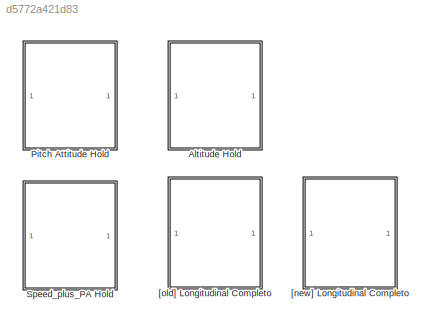
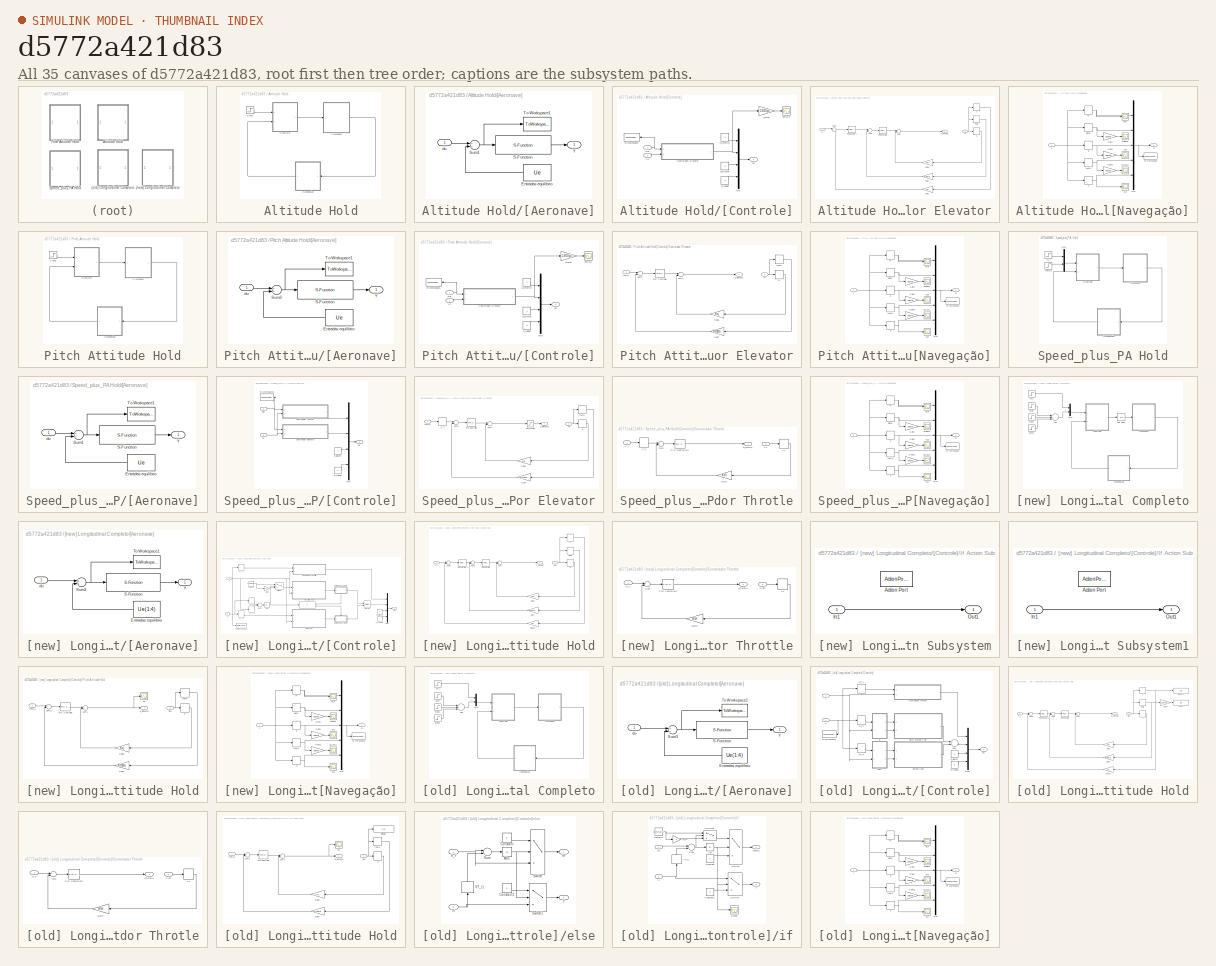
[diagram: thumbnail index - all 35 canvases of the model, root first then tree order]
MODEL slx_d5772a421d83
KIND model
CONFIG AbsTol = auto
CONFIG FixedStep = 0.01
CONFIG MaxStep = auto
CONFIG MinStep = auto
CONFIG RelTol = 1e-3
CONFIG SampleTimeConstraint = Unconstrained
CONFIG Solver = ode4
CONFIG SolverMode = Auto
CONFIG SolverName = ode4
CONFIG StartTime = 0.0
CONFIG StopTime = 300
BLOCK [SubSystem] Altitude Hold
  Commented = on
  Ports = []
  RequestExecContextInheritance = off
  Variant = off
BLOCK [Step] Altitude Hold/Step1
  After = -Xe(12)+5
  Before = -Xe(12)
  SampleTime = 0
  Time = 20
BLOCK [SubSystem] Altitude Hold/[Aeronave]
  Ports = [1, 1]
  RequestExecContextInheritance = off
  Variant = off
BLOCK [Constant] Altitude Hold/[Aeronave]/Entradas equilibrio
  Value = Ue
BLOCK [S-Function] Altitude Hold/[Aeronave]/S-Function
  EnableBusSupport = off
  FunctionName = sfunction_piper
  Parameters = par_gen,par_aero,par_prop, Xe
  Ports = [1, 1]
  SFunctionDeploymentMode = off
BLOCK [Sum] Altitude Hold/[Aeronave]/Sum1
  InputSameDT = off
  OutDataTypeStr = Inherit: Inherit via internal rule
  Ports = [2, 1]
  SaturateOnIntegerOverflow = off
BLOCK [ToWorkspace] Altitude Hold/[Aeronave]/To Workspace1
  MaxDataPoints = inf
  Ports = [1]
  SampleTime = -1
  SaveFormat = Timeseries
  VariableName = NLU
BLOCK [Outport] Altitude Hold/[Aeronave]/Y
  IconDisplay = Port number
BLOCK [Inport] Altitude Hold/[Aeronave]/du
  IconDisplay = Port number
BLOCK [SubSystem] Altitude Hold/[Controle]
  Ports = [2, 1]
  RequestExecContextInheritance = off
  Variant = off
BLOCK [SubSystem] Altitude Hold/[Controle]/Controlador Elevator
  Ports = [2, 1]
  RequestExecContextInheritance = off
  Variant = off
BLOCK [Gain] Altitude Hold/[Controle]/Controlador Elevator/Gain1
  Gain = Kh
  OutDataTypeStr = Inherit: Inherit via internal rule
  ParamDataTypeStr = Inherit: Inherit via internal rule
  SaturateOnIntegerOverflow = off
BLOCK [Gain] Altitude Hold/[Controle]/Controlador Elevator/Gain6
  Gain = Kq
  OutDataTypeStr = Inherit: Inherit via internal rule
  ParamDataTypeStr = Inherit: Inherit via internal rule
  SaturateOnIntegerOverflow = off
BLOCK [Gain] Altitude Hold/[Controle]/Controlador Elevator/Gain7
  Gain = Ktheta
  OutDataTypeStr = Inherit: Inherit via internal rule
  ParamDataTypeStr = Inherit: Inherit via internal rule
  SaturateOnIntegerOverflow = off
BLOCK [Reference] Altitude Hold/[Controle]/Controlador Elevator/PID Controller  REF=simulink/Continuous/PID Controller
  Ports = [1, 1]
  SourceBlock = simulink/Continuous/PID Controller
  SourceType = PID 1dof
BLOCK [Reference] Altitude Hold/[Controle]/Controlador Elevator/PID Controller1  REF=simulink/Continuous/PID Controller
  Ports = [1, 1]
  SourceBlock = simulink/Continuous/PID Controller
  SourceType = PID 1dof
BLOCK [Sum] Altitude Hold/[Controle]/Controlador Elevator/Sum1
  InputSameDT = off
  Inputs = +-
  OutDataTypeStr = Inherit: Inherit via internal rule
  Ports = [2, 1]
  SaturateOnIntegerOverflow = off
BLOCK [Sum] Altitude Hold/[Controle]/Controlador Elevator/Sum2
  InputSameDT = off
  Inputs = +-
  OutDataTypeStr = Inherit: Inherit via internal rule
  Ports = [2, 1]
  SaturateOnIntegerOverflow = off
BLOCK [Sum] Altitude Hold/[Controle]/Controlador Elevator/Sum3
  IconShape = round
  InputSameDT = off
  Inputs = |+-
  OutDataTypeStr = Inherit: Inherit via internal rule
  Ports = [2, 1]
  SaturateOnIntegerOverflow = off
BLOCK [Inport] Altitude Hold/[Controle]/Controlador Elevator/Yn
  IconDisplay = Port number
  Port = 2
BLOCK [Outport] Altitude Hold/[Controle]/Controlador Elevator/d_elevator
  IconDisplay = Port number
BLOCK [Selector] Altitude Hold/[Controle]/Controlador Elevator/h
  IndexOptions = Index vector (dialog)
  Indices = [5]
  InputPortWidth = 5
  OutputSizes = 1
  Ports = [1, 1]
BLOCK [Inport] Altitude Hold/[Controle]/Controlador Elevator/h_r
  IconDisplay = Port number
BLOCK [Selector] Altitude Hold/[Controle]/Controlador Elevator/q
  IndexOptions = Index vector (dialog)
  Indices = [3]
  InputPortWidth = 5
  OutputSizes = 1
  Ports = [1, 1]
BLOCK [Selector] Altitude Hold/[Controle]/Controlador Elevator/theta
  IndexOptions = Index vector (dialog)
  Indices = [4]
  InputPortWidth = 5
  OutputSizes = 1
  Ports = [1, 1]
BLOCK [Gain] Altitude Hold/[Controle]/Gain8
  Gain = 180/pi
  OutDataTypeStr = Inherit: Inherit via internal rule
  ParamDataTypeStr = Inherit: Inherit via internal rule
  SaturateOnIntegerOverflow = off
BLOCK [Mux] Altitude Hold/[Controle]/Mux
  DisplayOption = bar
  Ports = [4, 1]
BLOCK [Inport] Altitude Hold/[Controle]/Ref
  IconDisplay = Port number
BLOCK [ToWorkspace] Altitude Hold/[Controle]/To Workspace1
  MaxDataPoints = inf
  Ports = [1]
  SampleTime = -1
  SaveFormat = Timeseries
  VariableName = NLstep
BLOCK [Inport] Altitude Hold/[Controle]/Yn
  IconDisplay = Port number
  Port = 2
BLOCK [Constant] Altitude Hold/[Controle]/d_aileron
  Value = 0
BLOCK [Constant] Altitude Hold/[Controle]/d_rudder
  Value = 0
BLOCK [Constant] Altitude Hold/[Controle]/d_throttle
  Value = 0
BLOCK [Scope] Altitude Hold/[Controle]/delta_e
  Ports = [1]
  ScopeSpecificationString = Simulink.scopes.TimeScopeBlockCfg('CurrentConfiguration', extmgr.ConfigurationSet(extmgr.Configuration('Core','General UI',true),extmgr.Configuration('Core','Source UI',true),extmgr.Configuration('Sources','WiredSimulink',true,'DataLoggingVariableName','ScopeData1','DataLoggingSaveFormat','StructureWithTime','DataLoggingLimitDataPoints',true,'DataLoggingDecimation','1','DataLoggingDecimateData',tr...<+1696ch>
BLOCK [Outport] Altitude Hold/[Controle]/du
  IconDisplay = Port number
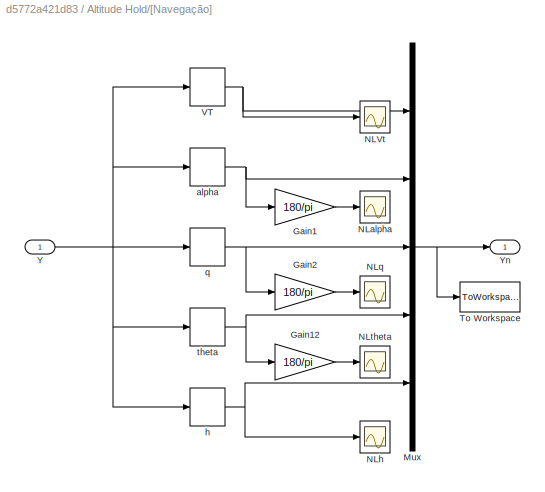
BLOCK [SubSystem] Altitude Hold/[Navegação]
  Ports = [1, 1]
  RequestExecContextInheritance = off
  Variant = off
BLOCK [Gain] Altitude Hold/[Navegação]/Gain1
  Gain = 180/pi
  OutDataTypeStr = Inherit: Inherit via internal rule
  ParamDataTypeStr = Inherit: Inherit via internal rule
  SaturateOnIntegerOverflow = off
BLOCK [Gain] Altitude Hold/[Navegação]/Gain12
  Gain = 180/pi
  OutDataTypeStr = Inherit: Inherit via internal rule
  ParamDataTypeStr = Inherit: Inherit via internal rule
  SaturateOnIntegerOverflow = off
BLOCK [Gain] Altitude Hold/[Navegação]/Gain2
  Gain = 180/pi
  OutDataTypeStr = Inherit: Inherit via internal rule
  ParamDataTypeStr = Inherit: Inherit via internal rule
  SaturateOnIntegerOverflow = off
BLOCK [Mux] Altitude Hold/[Navegação]/Mux
  DisplayOption = bar
  Inputs = 5
  Ports = [5, 1]
BLOCK [Scope] Altitude Hold/[Navegação]/NLVt
  Ports = [1]
  ScopeSpecificationString = Simulink.scopes.TimeScopeBlockCfg('CurrentConfiguration', extmgr.ConfigurationSet(extmgr.Configuration('Core','General UI',true),extmgr.Configuration('Core','Source UI',true),extmgr.Configuration('Sources','WiredSimulink',true,'DataLoggingVariableName','ScopeData3','DataLoggingSaveFormat','StructureWithTime','DataLoggingLimitDataPoints',true,'DataLoggingDecimation','1','DataLoggingDecimateData',tr...<+1700ch>
BLOCK [Scope] Altitude Hold/[Navegação]/NLalpha
  Ports = [1]
  ScopeSpecificationString = Simulink.scopes.TimeScopeBlockCfg('CurrentConfiguration', extmgr.ConfigurationSet(extmgr.Configuration('Core','General UI',true),extmgr.Configuration('Core','Source UI',true),extmgr.Configuration('Sources','WiredSimulink',true,'DataLoggingVariableName','ScopeData8','DataLoggingSaveFormat','StructureWithTime','DataLoggingLimitDataPoints',true,'DataLoggingDecimation','1','DataLoggingDecimateData',tr...<+1720ch>
BLOCK [Scope] Altitude Hold/[Navegação]/NLh
  Ports = [1]
  ScopeSpecificationString = Simulink.scopes.TimeScopeBlockCfg('CurrentConfiguration', extmgr.ConfigurationSet(extmgr.Configuration('Core','General UI',true),extmgr.Configuration('Core','Source UI',true),extmgr.Configuration('Sources','WiredSimulink',true,'DataLoggingVariableName','ScopeData5','DataLoggingSaveFormat','StructureWithTime','DataLoggingLimitDataPoints',true,'DataLoggingDecimation','1','DataLoggingDecimateData',tr...<+1759ch>
BLOCK [Scope] Altitude Hold/[Navegação]/NLq
  Ports = [1]
  ScopeSpecificationString = C++SS(StrPVP('Location','[1, 49, 1441, 899]'),StrPVP('Open','off'),StrPVP('ZoomMode','yonly'),MxPVP('AxesTitles',24,'struct(''axes1'',''%<SignalLabel>'')'),MxPVP('ScopeGraphics',28,'struct(''FigureColor'',''[0.5 0.5 0.5]'',''AxesColor'',''[0 0 0]'',''AxesTickColor'',''[1 1 1]'',''LineColors'',''[1 1 0;1 0 1;0 1 1;1 0 0;0 1 0;0 0 1]'',''LineStyles'',''-|-|-|-|-|-'',''LineWidths'',''[0.5 0.5 0.5 0.5...<+346ch>  <repeated x4 — deduplicated; at blocks: NLq>
BLOCK [Scope] Altitude Hold/[Navegação]/NLtheta
  Ports = [1]
  ScopeSpecificationString = Simulink.scopes.TimeScopeBlockCfg('CurrentConfiguration', extmgr.ConfigurationSet(extmgr.Configuration('Core','General UI',true),extmgr.Configuration('Core','Source UI',true),extmgr.Configuration('Sources','WiredSimulink',true,'DataLoggingVariableName','ScopeData7','DataLoggingSaveFormat','StructureWithTime','DataLoggingLimitDataPoints',true,'DataLoggingDecimation','1','DataLoggingDecimateData',tr...<+1701ch>
BLOCK [ToWorkspace] Altitude Hold/[Navegação]/To Workspace
  MaxDataPoints = inf
  Ports = [1]
  SampleTime = -1
  SaveFormat = Timeseries
  VariableName = NLY
BLOCK [Selector] Altitude Hold/[Navegação]/VT
  IndexOptions = Index vector (dialog)
  Indices = [1]
  InputPortWidth = 12
  OutputSizes = 1
  Ports = [1, 1]
BLOCK [Inport] Altitude Hold/[Navegação]/Y
  IconDisplay = Port number
BLOCK [Outport] Altitude Hold/[Navegação]/Yn
  IconDisplay = Port number
BLOCK [Selector] Altitude Hold/[Navegação]/alpha
  IndexOptions = Index vector (dialog)
  Indices = [2]
  InputPortWidth = 12
  OutputSizes = 1
  Ports = [1, 1]
BLOCK [Selector] Altitude Hold/[Navegação]/h
  IndexOptions = Index vector (dialog)
  Indices = [12]
  InputPortWidth = 12
  OutputSizes = 1
  Ports = [1, 1]
BLOCK [Selector] Altitude Hold/[Navegação]/q
  IndexOptions = Index vector (dialog)
  Indices = [5]
  InputPortWidth = 12
  OutputSizes = 1
  Ports = [1, 1]
BLOCK [Selector] Altitude Hold/[Navegação]/theta
  IndexOptions = Index vector (dialog)
  Indices = [8]
  InputPortWidth = 12
  OutputSizes = 1
  Ports = [1, 1]
BLOCK [SubSystem] Pitch Attitude Hold
  Commented = on
  Ports = []
  RequestExecContextInheritance = off
  Variant = off
BLOCK [Step] Pitch Attitude Hold/Step1
  After = degtorad(5)+(Xe(8))
  Before = Xe(8)
  SampleTime = 0
  Time = 20
BLOCK [SubSystem] Pitch Attitude Hold/[Aeronave]
  Ports = [1, 1]
  RequestExecContextInheritance = off
  Variant = off
BLOCK [Constant] Pitch Attitude Hold/[Aeronave]/Entradas equilibrio
  Value = Ue
BLOCK [S-Function] Pitch Attitude Hold/[Aeronave]/S-Function
  EnableBusSupport = off
  FunctionName = sfunction_piper
  Parameters = par_gen,par_aero,par_prop, Xe
  Ports = [1, 1]
  SFunctionDeploymentMode = off
BLOCK [Sum] Pitch Attitude Hold/[Aeronave]/Sum3
  InputSameDT = off
  OutDataTypeStr = Inherit: Inherit via internal rule
  Ports = [2, 1]
  SaturateOnIntegerOverflow = off
BLOCK [ToWorkspace] Pitch Attitude Hold/[Aeronave]/To Workspace1
  MaxDataPoints = inf
  Ports = [1]
  SampleTime = -1
  SaveFormat = Timeseries
  VariableName = NLU
BLOCK [Outport] Pitch Attitude Hold/[Aeronave]/Y
  IconDisplay = Port number
BLOCK [Inport] Pitch Attitude Hold/[Aeronave]/du
  IconDisplay = Port number
BLOCK [SubSystem] Pitch Attitude Hold/[Controle]
  Ports = [2, 1]
  RequestExecContextInheritance = off
  Variant = off
BLOCK [SubSystem] Pitch Attitude Hold/[Controle]/Controlador Elevator
  Ports = [2, 1]
  RequestExecContextInheritance = off
  Variant = off
BLOCK [Gain] Pitch Attitude Hold/[Controle]/Controlador Elevator/Gain6
  Gain = Kq
  OutDataTypeStr = Inherit: Inherit via internal rule
  ParamDataTypeStr = Inherit: Inherit via internal rule
  SaturateOnIntegerOverflow = off
BLOCK [Gain] Pitch Attitude Hold/[Controle]/Controlador Elevator/Gain7
  Gain = Ktheta
  OutDataTypeStr = Inherit: Inherit via internal rule
  ParamDataTypeStr = Inherit: Inherit via internal rule
  SaturateOnIntegerOverflow = off
BLOCK [Reference] Pitch Attitude Hold/[Controle]/Controlador Elevator/PID Controller  REF=simulink/Continuous/PID Controller
  Ports = [1, 1]
  SourceBlock = simulink/Continuous/PID Controller
  SourceType = PID 1dof
BLOCK [Sum] Pitch Attitude Hold/[Controle]/Controlador Elevator/Sum1
  InputSameDT = off
  Inputs = +-
  OutDataTypeStr = Inherit: Inherit via internal rule
  Ports = [2, 1]
  SaturateOnIntegerOverflow = off
BLOCK [Sum] Pitch Attitude Hold/[Controle]/Controlador Elevator/Sum2
  InputSameDT = off
  Inputs = +-
  OutDataTypeStr = Inherit: Inherit via internal rule
  Ports = [2, 1]
  SaturateOnIntegerOverflow = off
BLOCK [Inport] Pitch Attitude Hold/[Controle]/Controlador Elevator/Yn
  IconDisplay = Port number
  Port = 2
BLOCK [Outport] Pitch Attitude Hold/[Controle]/Controlador Elevator/d_elevator
  IconDisplay = Port number
BLOCK [Selector] Pitch Attitude Hold/[Controle]/Controlador Elevator/q
  IndexOptions = Index vector (dialog)
  Indices = [3]
  InputPortWidth = 5
  OutputSizes = 1
  Ports = [1, 1]
BLOCK [Selector] Pitch Attitude Hold/[Controle]/Controlador Elevator/theta
  IndexOptions = Index vector (dialog)
  Indices = [4]
  InputPortWidth = 5
  OutputSizes = 1
  Ports = [1, 1]
BLOCK [Inport] Pitch Attitude Hold/[Controle]/Controlador Elevator/theta_r
  IconDisplay = Port number
BLOCK [Gain] Pitch Attitude Hold/[Controle]/Gain8
  Gain = 180/pi
  OutDataTypeStr = Inherit: Inherit via internal rule
  ParamDataTypeStr = Inherit: Inherit via internal rule
  SaturateOnIntegerOverflow = off
BLOCK [Mux] Pitch Attitude Hold/[Controle]/Mux
  DisplayOption = bar
  Ports = [4, 1]
BLOCK [Inport] Pitch Attitude Hold/[Controle]/Ref
  IconDisplay = Port number
BLOCK [ToWorkspace] Pitch Attitude Hold/[Controle]/To Workspace1
  MaxDataPoints = inf
  Ports = [1]
  SampleTime = -1
  SaveFormat = Timeseries
  VariableName = NLstep
BLOCK [Inport] Pitch Attitude Hold/[Controle]/Yn
  IconDisplay = Port number
  Port = 2
BLOCK [Constant] Pitch Attitude Hold/[Controle]/d_aileron
  Value = 0
BLOCK [Constant] Pitch Attitude Hold/[Controle]/d_rudder
  Value = 0
BLOCK [Constant] Pitch Attitude Hold/[Controle]/d_throttle
  Value = 0
BLOCK [Scope] Pitch Attitude Hold/[Controle]/delta_e
  Ports = [1]
  ScopeSpecificationString = C++SS(StrPVP('Location','[9, 57, 676, 719]'),StrPVP('Open','off'),StrPVP('ZoomMode','xonly'),MxPVP('AxesTitles',24,'struct(''axes1'',''%<SignalLabel>'')'),MxPVP('ScopeGraphics',28,'struct(''FigureColor'',''[0.5 0.5 0.5]'',''AxesColor'',''[0 0 0]'',''AxesTickColor'',''[1 1 1]'',''LineColors'',''[1 1 0;1 0 1;0 1 1;1 0 0;0 1 0;0 0 1]'',''LineStyles'',''-|-|-|-|-|-'',''LineWidths'',''[0.5 0.5 0.5 0.5 ...<+342ch>
BLOCK [Outport] Pitch Attitude Hold/[Controle]/du
  IconDisplay = Port number
BLOCK [SubSystem] Pitch Attitude Hold/[Navegação]
  Ports = [1, 1]
  RequestExecContextInheritance = off
  Variant = off
BLOCK [Gain] Pitch Attitude Hold/[Navegação]/Gain1
  Gain = 180/pi
  OutDataTypeStr = Inherit: Inherit via internal rule
  ParamDataTypeStr = Inherit: Inherit via internal rule
  SaturateOnIntegerOverflow = off
BLOCK [Gain] Pitch Attitude Hold/[Navegação]/Gain12
  Gain = 180/pi
  OutDataTypeStr = Inherit: Inherit via internal rule
  ParamDataTypeStr = Inherit: Inherit via internal rule
  SaturateOnIntegerOverflow = off
BLOCK [Gain] Pitch Attitude Hold/[Navegação]/Gain2
  Gain = 180/pi
  OutDataTypeStr = Inherit: Inherit via internal rule
  ParamDataTypeStr = Inherit: Inherit via internal rule
  SaturateOnIntegerOverflow = off
BLOCK [Mux] Pitch Attitude Hold/[Navegação]/Mux
  DisplayOption = bar
  Inputs = 5
  Ports = [5, 1]
BLOCK [Scope] Pitch Attitude Hold/[Navegação]/NLVt
  Ports = [1]
  ScopeSpecificationString = Simulink.scopes.TimeScopeBlockCfg('CurrentConfiguration', extmgr.ConfigurationSet(extmgr.Configuration('Core','General UI',true),extmgr.Configuration('Core','Source UI',true),extmgr.Configuration('Sources','WiredSimulink',true,'DataLoggingVariableName','ScopeData3','DataLoggingSaveFormat','StructureWithTime','DataLoggingLimitDataPoints',true,'DataLoggingDecimation','1','DataLoggingDecimateData',tr...<+1690ch>
BLOCK [Scope] Pitch Attitude Hold/[Navegação]/NLalpha
  Ports = [1]
  ScopeSpecificationString = C++SS(StrPVP('Location','[1368, 57, 2206, 1008]'),StrPVP('Open','off'),StrPVP('ZoomMode','yonly'),MxPVP('AxesTitles',24,'struct(''axes1'',''%<SignalLabel>'')'),MxPVP('ScopeGraphics',28,'struct(''FigureColor'',''[0.5 0.5 0.5]'',''AxesColor'',''[0 0 0]'',''AxesTickColor'',''[1 1 1]'',''LineColors'',''[1 1 0;1 0 1;0 1 1;1 0 0;0 1 0;0 0 1]'',''LineStyles'',''-|-|-|-|-|-'',''LineWidths'',''[0.5 0.5 0.5...<+350ch>
BLOCK [Scope] Pitch Attitude Hold/[Navegação]/NLh
  Ports = [1]
  ScopeSpecificationString = Simulink.scopes.TimeScopeBlockCfg('CurrentConfiguration', extmgr.ConfigurationSet(extmgr.Configuration('Core','General UI',true),extmgr.Configuration('Core','Source UI',true),extmgr.Configuration('Sources','WiredSimulink',true,'DataLoggingVariableName','ScopeData5','DataLoggingSaveFormat','StructureWithTime','DataLoggingLimitDataPoints',true,'DataLoggingDecimation','1','DataLoggingDecimateData',tr...<+1732ch>
BLOCK [Scope] Pitch Attitude Hold/[Navegação]/NLq
  Ports = [1]
  ScopeSpecificationString = Simulink.scopes.TimeScopeBlockCfg('CurrentConfiguration', extmgr.ConfigurationSet(extmgr.Configuration('Core','General UI',true),extmgr.Configuration('Core','Source UI',true),extmgr.Configuration('Sources','WiredSimulink',true,'DataLoggingVariableName','ScopeData9','DataLoggingSaveFormat','StructureWithTime','DataLoggingLimitDataPoints',true,'DataLoggingDecimation','1','DataLoggingDecimateData',tr...<+1737ch>
BLOCK [Scope] Pitch Attitude Hold/[Navegação]/NLtheta
  Ports = [1]
  ScopeSpecificationString = Simulink.scopes.TimeScopeBlockCfg('CurrentConfiguration', extmgr.ConfigurationSet(extmgr.Configuration('Core','General UI',true),extmgr.Configuration('Core','Source UI',true),extmgr.Configuration('Sources','WiredSimulink',true,'DataLoggingVariableName','ScopeData7','DataLoggingSaveFormat','StructureWithTime','DataLoggingLimitDataPoints',true,'DataLoggingDecimation','1','DataLoggingDecimateData',tr...<+1748ch>
BLOCK [ToWorkspace] Pitch Attitude Hold/[Navegação]/To Workspace
  MaxDataPoints = inf
  Ports = [1]
  SampleTime = -1
  SaveFormat = Timeseries
  VariableName = NLY
BLOCK [Selector] Pitch Attitude Hold/[Navegação]/VT
  IndexOptions = Index vector (dialog)
  Indices = [1]
  InputPortWidth = 12
  OutputSizes = 1
  Ports = [1, 1]
BLOCK [Inport] Pitch Attitude Hold/[Navegação]/Y
  IconDisplay = Port number
BLOCK [Outport] Pitch Attitude Hold/[Navegação]/Yn
  IconDisplay = Port number
BLOCK [Selector] Pitch Attitude Hold/[Navegação]/alpha
  IndexOptions = Index vector (dialog)
  Indices = [2]
  InputPortWidth = 12
  OutputSizes = 1
  Ports = [1, 1]
BLOCK [Selector] Pitch Attitude Hold/[Navegação]/h
  IndexOptions = Index vector (dialog)
  Indices = [12]
  InputPortWidth = 12
  OutputSizes = 1
  Ports = [1, 1]
BLOCK [Selector] Pitch Attitude Hold/[Navegação]/q
  IndexOptions = Index vector (dialog)
  Indices = [5]
  InputPortWidth = 12
  OutputSizes = 1
  Ports = [1, 1]
BLOCK [Selector] Pitch Attitude Hold/[Navegação]/theta
  IndexOptions = Index vector (dialog)
  Indices = [8]
  InputPortWidth = 12
  OutputSizes = 1
  Ports = [1, 1]
BLOCK [SubSystem] Speed_plus_PA Hold
  Commented = on
  Ports = []
  RequestExecContextInheritance = off
  Variant = off
BLOCK [Mux] Speed_plus_PA Hold/Mux
  DisplayOption = bar
  Inputs = 2
  Ports = [2, 1]
BLOCK [Step] Speed_plus_PA Hold/VT_r
  After = norm(Xe(1:3))
  Before = norm(Xe(1:3))
  SampleTime = 0
  Time = 0
BLOCK [SubSystem] Speed_plus_PA Hold/[Aeronave]
  Ports = [1, 1]
  RequestExecContextInheritance = off
  Variant = off
BLOCK [Constant] Speed_plus_PA Hold/[Aeronave]/Entradas equilibrio
  Value = Ue
BLOCK [S-Function] Speed_plus_PA Hold/[Aeronave]/S-Function
  EnableBusSupport = off
  FunctionName = sfunction_piper
  Parameters = par_gen,par_aero,par_prop, Xe
  Ports = [1, 1]
  SFunctionDeploymentMode = off
BLOCK [Sum] Speed_plus_PA Hold/[Aeronave]/Sum1
  InputSameDT = off
  OutDataTypeStr = Inherit: Inherit via internal rule
  Ports = [2, 1]
  SaturateOnIntegerOverflow = off
BLOCK [ToWorkspace] Speed_plus_PA Hold/[Aeronave]/To Workspace1
  MaxDataPoints = inf
  Ports = [1]
  SampleTime = -1
  SaveFormat = Timeseries
  VariableName = NLU
BLOCK [Outport] Speed_plus_PA Hold/[Aeronave]/Y
  IconDisplay = Port number
BLOCK [Inport] Speed_plus_PA Hold/[Aeronave]/du
  IconDisplay = Port number
BLOCK [SubSystem] Speed_plus_PA Hold/[Controle]
  Ports = [2, 1]
  RequestExecContextInheritance = off
  Variant = off
BLOCK [SubSystem] Speed_plus_PA Hold/[Controle]/Controlador Elevator
  Ports = [2, 1]
  RequestExecContextInheritance = off
  Variant = off
BLOCK [Gain] Speed_plus_PA Hold/[Controle]/Controlador Elevator/Gain6
  Gain = Kq
  OutDataTypeStr = Inherit: Inherit via internal rule
  ParamDataTypeStr = Inherit: Inherit via internal rule
  SaturateOnIntegerOverflow = off
BLOCK [Gain] Speed_plus_PA Hold/[Controle]/Controlador Elevator/Gain7
  Gain = Ktheta
  OutDataTypeStr = Inherit: Inherit via internal rule
  ParamDataTypeStr = Inherit: Inherit via internal rule
  SaturateOnIntegerOverflow = off
BLOCK [Reference] Speed_plus_PA Hold/[Controle]/Controlador Elevator/PID Controller  REF=simulink/Continuous/PID Controller
  Ports = [1, 1]
  SourceBlock = simulink/Continuous/PID Controller
  SourceType = PID 1dof
BLOCK [Saturate] Speed_plus_PA Hold/[Controle]/Controlador Elevator/Saturation
  InputPortMap = u0
  LowerLimit = -15*pi/180
  Ports = [1, 1]
  UpperLimit = 15*pi/180
BLOCK [Sum] Speed_plus_PA Hold/[Controle]/Controlador Elevator/Sum1
  InputSameDT = off
  Inputs = +-
  OutDataTypeStr = Inherit: Inherit via internal rule
  Ports = [2, 1]
  SaturateOnIntegerOverflow = off
BLOCK [Sum] Speed_plus_PA Hold/[Controle]/Controlador Elevator/Sum2
  InputSameDT = off
  Inputs = +-
  OutDataTypeStr = Inherit: Inherit via internal rule
  Ports = [2, 1]
  SaturateOnIntegerOverflow = off
BLOCK [Inport] Speed_plus_PA Hold/[Controle]/Controlador Elevator/Yn
  IconDisplay = Port number
  Port = 2
BLOCK [Outport] Speed_plus_PA Hold/[Controle]/Controlador Elevator/d_elevator
  IconDisplay = Port number
BLOCK [Selector] Speed_plus_PA Hold/[Controle]/Controlador Elevator/h_r1
  IndexOptions = Index vector (dialog)
  Indices = [2]
  InputPortWidth = 2
  OutputSizes = 1
  Ports = [1, 1]
BLOCK [Selector] Speed_plus_PA Hold/[Controle]/Controlador Elevator/q
  IndexOptions = Index vector (dialog)
  Indices = [3]
  InputPortWidth = 5
  OutputSizes = 1
  Ports = [1, 1]
BLOCK [Selector] Speed_plus_PA Hold/[Controle]/Controlador Elevator/theta
  IndexOptions = Index vector (dialog)
  Indices = [4]
  InputPortWidth = 5
  OutputSizes = 1
  Ports = [1, 1]
BLOCK [Inport] Speed_plus_PA Hold/[Controle]/Controlador Elevator/theta_r
  IconDisplay = Port number
BLOCK [SubSystem] Speed_plus_PA Hold/[Controle]/Controlador Throtle
  Ports = [2, 1]
  RequestExecContextInheritance = off
  Variant = off
BLOCK [Gain] Speed_plus_PA Hold/[Controle]/Controlador Throtle/Gain7
  Gain = KVt
  OutDataTypeStr = Inherit: Inherit via internal rule
  ParamDataTypeStr = Inherit: Inherit via internal rule
  SaturateOnIntegerOverflow = off
BLOCK [Reference] Speed_plus_PA Hold/[Controle]/Controlador Throtle/PID Controller1  REF=simulink/Continuous/PID Controller
  Ports = [1, 1]
  SourceBlock = simulink/Continuous/PID Controller
  SourceType = PID 1dof
BLOCK [Sum] Speed_plus_PA Hold/[Controle]/Controlador Throtle/Sum
  InputSameDT = off
  Inputs = +-
  OutDataTypeStr = Inherit: Inherit via internal rule
  Ports = [2, 1]
  SaturateOnIntegerOverflow = off
BLOCK [Selector] Speed_plus_PA Hold/[Controle]/Controlador Throtle/VT
  IndexOptions = Index vector (dialog)
  Indices = 1
  InputPortWidth = 5
  OutputSizes = 1
  Ports = [1, 1]
BLOCK [Selector] Speed_plus_PA Hold/[Controle]/Controlador Throtle/VT_r
  IndexOptions = Index vector (dialog)
  Indices = [1]
  InputPortWidth = 2
  OutputSizes = 1
  Ports = [1, 1]
BLOCK [Inport] Speed_plus_PA Hold/[Controle]/Controlador Throtle/Vt_r
  IconDisplay = Port number
BLOCK [Inport] Speed_plus_PA Hold/[Controle]/Controlador Throtle/Yn
  IconDisplay = Port number
  Port = 2
BLOCK [Outport] Speed_plus_PA Hold/[Controle]/Controlador Throtle/d_throtle
  IconDisplay = Port number
BLOCK [Mux] Speed_plus_PA Hold/[Controle]/Mux
  DisplayOption = bar
  Ports = [4, 1]
BLOCK [Inport] Speed_plus_PA Hold/[Controle]/Ref
  IconDisplay = Port number
BLOCK [ToWorkspace] Speed_plus_PA Hold/[Controle]/To Workspace1
  MaxDataPoints = inf
  Ports = [1]
  SampleTime = -1
  SaveFormat = Timeseries
  VariableName = NLstep
BLOCK [Inport] Speed_plus_PA Hold/[Controle]/Yn
  IconDisplay = Port number
  Port = 2
BLOCK [Constant] Speed_plus_PA Hold/[Controle]/d_aileron
  Value = 0
BLOCK [Constant] Speed_plus_PA Hold/[Controle]/d_rudder
  Value = 0
BLOCK [Outport] Speed_plus_PA Hold/[Controle]/du
  IconDisplay = Port number
BLOCK [SubSystem] Speed_plus_PA Hold/[Navegação]
  Ports = [1, 1]
  RequestExecContextInheritance = off
  Variant = off
BLOCK [Gain] Speed_plus_PA Hold/[Navegação]/Gain1
  Gain = 180/pi
  OutDataTypeStr = Inherit: Inherit via internal rule
  ParamDataTypeStr = Inherit: Inherit via internal rule
  SaturateOnIntegerOverflow = off
BLOCK [Gain] Speed_plus_PA Hold/[Navegação]/Gain12
  Gain = 180/pi
  OutDataTypeStr = Inherit: Inherit via internal rule
  ParamDataTypeStr = Inherit: Inherit via internal rule
  SaturateOnIntegerOverflow = off
BLOCK [Gain] Speed_plus_PA Hold/[Navegação]/Gain2
  Gain = 180/pi
  OutDataTypeStr = Inherit: Inherit via internal rule
  ParamDataTypeStr = Inherit: Inherit via internal rule
  SaturateOnIntegerOverflow = off
BLOCK [Mux] Speed_plus_PA Hold/[Navegação]/Mux
  DisplayOption = bar
  Inputs = 5
  Ports = [5, 1]
BLOCK [Scope] Speed_plus_PA Hold/[Navegação]/NLVt
  Ports = [1]
  ScopeSpecificationString = Simulink.scopes.TimeScopeBlockCfg('CurrentConfiguration', extmgr.ConfigurationSet(extmgr.Configuration('Core','General UI',true),extmgr.Configuration('Core','Source UI',true),extmgr.Configuration('Sources','WiredSimulink',true,'DataLoggingVariableName','ScopeData3','DataLoggingSaveFormat','StructureWithTime','DataLoggingLimitDataPoints',true,'DataLoggingDecimation','1','DataLoggingDecimateData',tr...<+1696ch>
BLOCK [Scope] Speed_plus_PA Hold/[Navegação]/NLalpha
  Ports = [1]
  ScopeSpecificationString = Simulink.scopes.TimeScopeBlockCfg('CurrentConfiguration', extmgr.ConfigurationSet(extmgr.Configuration('Core','General UI',true),extmgr.Configuration('Core','Source UI',true),extmgr.Configuration('Sources','WiredSimulink',true,'DataLoggingVariableName','ScopeData8','DataLoggingSaveFormat','StructureWithTime','DataLoggingLimitDataPoints',true,'DataLoggingDecimation','1','DataLoggingDecimateData',tr...<+1695ch>  <repeated x3 — deduplicated; at blocks: NLalpha>
BLOCK [Scope] Speed_plus_PA Hold/[Navegação]/NLh
  Ports = [1]
  ScopeSpecificationString = Simulink.scopes.TimeScopeBlockCfg('CurrentConfiguration', extmgr.ConfigurationSet(extmgr.Configuration('Core','General UI',true),extmgr.Configuration('Core','Source UI',true),extmgr.Configuration('Sources','WiredSimulink',true,'DataLoggingVariableName','ScopeData5','DataLoggingSaveFormat','StructureWithTime','DataLoggingLimitDataPoints',true,'DataLoggingDecimation','1','DataLoggingDecimateData',tr...<+1734ch>
BLOCK [Scope] Speed_plus_PA Hold/[Navegação]/NLq
  Ports = [1]
BLOCK [Scope] Speed_plus_PA Hold/[Navegação]/NLtheta
  Ports = [1]
  ScopeSpecificationString = Simulink.scopes.TimeScopeBlockCfg('CurrentConfiguration', extmgr.ConfigurationSet(extmgr.Configuration('Core','General UI',true),extmgr.Configuration('Core','Source UI',true),extmgr.Configuration('Sources','WiredSimulink',true,'DataLoggingVariableName','ScopeData7','DataLoggingSaveFormat','StructureWithTime','DataLoggingLimitDataPoints',true,'DataLoggingDecimation','1','DataLoggingDecimateData',tr...<+1727ch>
BLOCK [ToWorkspace] Speed_plus_PA Hold/[Navegação]/To Workspace
  MaxDataPoints = inf
  Ports = [1]
  SampleTime = -1
  SaveFormat = Timeseries
  VariableName = NLY
BLOCK [Selector] Speed_plus_PA Hold/[Navegação]/VT
  IndexOptions = Index vector (dialog)
  Indices = [1]
  InputPortWidth = 12
  OutputSizes = 1
  Ports = [1, 1]
BLOCK [Inport] Speed_plus_PA Hold/[Navegação]/Y
  IconDisplay = Port number
BLOCK [Outport] Speed_plus_PA Hold/[Navegação]/Yn
  IconDisplay = Port number
BLOCK [Selector] Speed_plus_PA Hold/[Navegação]/alpha
  IndexOptions = Index vector (dialog)
  Indices = [2]
  InputPortWidth = 12
  OutputSizes = 1
  Ports = [1, 1]
BLOCK [Selector] Speed_plus_PA Hold/[Navegação]/h
  IndexOptions = Index vector (dialog)
  Indices = [12]
  InputPortWidth = 12
  OutputSizes = 1
  Ports = [1, 1]
BLOCK [Selector] Speed_plus_PA Hold/[Navegação]/q
  IndexOptions = Index vector (dialog)
  Indices = [5]
  InputPortWidth = 12
  OutputSizes = 1
  Ports = [1, 1]
BLOCK [Selector] Speed_plus_PA Hold/[Navegação]/theta
  IndexOptions = Index vector (dialog)
  Indices = [8]
  InputPortWidth = 12
  OutputSizes = 1
  Ports = [1, 1]
BLOCK [Step] Speed_plus_PA Hold/theta_r
  After = degtorad(5)+(Xe(8))
  Before = Xe(8)
  SampleTime = 0
  Time = 20
BLOCK [SubSystem] [new] Longitudinal Completo
  Commented = on
  Ports = []
  RequestExecContextInheritance = off
  Variant = off
BLOCK [Sum] [new] Longitudinal Completo/Add
  InputSameDT = off
  Inputs = +++
  OutDataTypeStr = Inherit: Inherit via internal rule
  Ports = [3, 1]
  SaturateOnIntegerOverflow = off
BLOCK [Mux] [new] Longitudinal Completo/Mux
  DisplayOption = bar
  Inputs = 2
  Ports = [2, 1]
BLOCK [Step] [new] Longitudinal Completo/Step
  After = -Xe(12)+40
  Before = -Xe(12)
  SampleTime = 0
  Time = 50
BLOCK [Step] [new] Longitudinal Completo/Step1
  After = -80
  SampleTime = 0
  Time = 150
BLOCK [Step] [new] Longitudinal Completo/Step2
  After = 40
  SampleTime = 0
  Time = 250
BLOCK [UnitDelay] [new] Longitudinal Completo/Unit Delay
  InputProcessing = Elements as channels (sample based)
  SampleTime = -1
BLOCK [Step] [new] Longitudinal Completo/VT_r
  After = norm(Xe(1:3))
  Before = norm(Xe(1:3))
  SampleTime = 0
  Time = 0
BLOCK [SubSystem] [new] Longitudinal Completo/[Aeronave]
  Ports = [1, 1]
  RequestExecContextInheritance = off
  Variant = off
BLOCK [Constant] [new] Longitudinal Completo/[Aeronave]/Entradas equilibrio
  Value = Ue(1:4)
BLOCK [S-Function] [new] Longitudinal Completo/[Aeronave]/S-Function
  EnableBusSupport = off
  FunctionName = sfunction_piper
  Parameters = par_gen,par_aero,par_prop, Xe
  Ports = [1, 1]
  SFunctionDeploymentMode = off
BLOCK [Sum] [new] Longitudinal Completo/[Aeronave]/Sum3
  InputSameDT = off
  OutDataTypeStr = Inherit: Inherit via internal rule
  Ports = [2, 1]
  SaturateOnIntegerOverflow = off
BLOCK [ToWorkspace] [new] Longitudinal Completo/[Aeronave]/To Workspace1
  MaxDataPoints = inf
  Ports = [1]
  SampleTime = -1
  SaveFormat = Timeseries
  VariableName = NLU_comp
BLOCK [Outport] [new] Longitudinal Completo/[Aeronave]/Y
  IconDisplay = Port number
BLOCK [Inport] [new] Longitudinal Completo/[Aeronave]/du
  IconDisplay = Port number
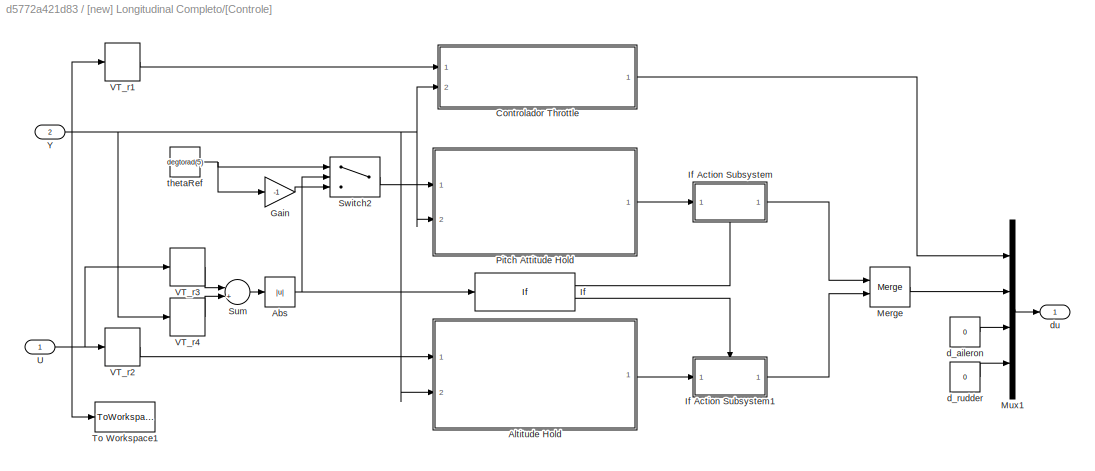
BLOCK [SubSystem] [new] Longitudinal Completo/[Controle]
  Ports = [2, 1]
  RequestExecContextInheritance = off
  Variant = off
BLOCK [Abs] [new] Longitudinal Completo/[Controle]/Abs
  SaturateOnIntegerOverflow = off
BLOCK [SubSystem] [new] Longitudinal Completo/[Controle]/Altitude Hold
  Ports = [2, 1]
  RequestExecContextInheritance = off
  Variant = off
BLOCK [Gain] [new] Longitudinal Completo/[Controle]/Altitude Hold/Gain10
  Gain = Kh
  OutDataTypeStr = Inherit: Inherit via internal rule
  ParamDataTypeStr = Inherit: Inherit via internal rule
  SaturateOnIntegerOverflow = off
BLOCK [Gain] [new] Longitudinal Completo/[Controle]/Altitude Hold/Gain6
  Gain = Kq
  OutDataTypeStr = Inherit: Inherit via internal rule
  ParamDataTypeStr = Inherit: Inherit via internal rule
  SaturateOnIntegerOverflow = off
BLOCK [Gain] [new] Longitudinal Completo/[Controle]/Altitude Hold/Gain7
  Gain = Ktheta
  OutDataTypeStr = Inherit: Inherit via internal rule
  ParamDataTypeStr = Inherit: Inherit via internal rule
  SaturateOnIntegerOverflow = off
BLOCK [Reference] [new] Longitudinal Completo/[Controle]/Altitude Hold/PID Controller  REF=simulink/Continuous/PID Controller
  Ports = [1, 1]
  SourceBlock = simulink/Continuous/PID Controller
  SourceType = PID 1dof
BLOCK [Reference] [new] Longitudinal Completo/[Controle]/Altitude Hold/PID Controller1  REF=simulink/Continuous/PID Controller
  Ports = [1, 1]
  SourceBlock = simulink/Continuous/PID Controller
  SourceType = PID 1dof
BLOCK [Sum] [new] Longitudinal Completo/[Controle]/Altitude Hold/Sum
  InputSameDT = off
  Inputs = |+-
  OutDataTypeStr = Inherit: Inherit via internal rule
  Ports = [2, 1]
  SaturateOnIntegerOverflow = off
BLOCK [Sum] [new] Longitudinal Completo/[Controle]/Altitude Hold/Sum1
  InputSameDT = off
  Inputs = |+-
  OutDataTypeStr = Inherit: Inherit via internal rule
  Ports = [2, 1]
  SaturateOnIntegerOverflow = off
BLOCK [Sum] [new] Longitudinal Completo/[Controle]/Altitude Hold/Sum2
  InputSameDT = off
  Inputs = |+-
  OutDataTypeStr = Inherit: Inherit via internal rule
  Ports = [2, 1]
  SaturateOnIntegerOverflow = off
BLOCK [Inport] [new] Longitudinal Completo/[Controle]/Altitude Hold/Ylon
  IconDisplay = Port number
  Port = 2
BLOCK [Outport] [new] Longitudinal Completo/[Controle]/Altitude Hold/d_elevator
  IconDisplay = Port number
BLOCK [Selector] [new] Longitudinal Completo/[Controle]/Altitude Hold/h
  IndexOptions = Index vector (dialog)
  Indices = [5]
  InputPortWidth = 5
  OutputSizes = 1
  Ports = [1, 1]
BLOCK [Inport] [new] Longitudinal Completo/[Controle]/Altitude Hold/h_r
  IconDisplay = Port number
BLOCK [Selector] [new] Longitudinal Completo/[Controle]/Altitude Hold/q
  IndexOptions = Index vector (dialog)
  Indices = [3]
  InputPortWidth = 5
  OutputSizes = 1
  Ports = [1, 1]
BLOCK [Selector] [new] Longitudinal Completo/[Controle]/Altitude Hold/theta
  IndexOptions = Index vector (dialog)
  Indices = [4]
  InputPortWidth = 5
  OutputSizes = 1
  Ports = [1, 1]
BLOCK [SubSystem] [new] Longitudinal Completo/[Controle]/Controlador Throttle
  Ports = [2, 1]
  RequestExecContextInheritance = off
  Variant = off
BLOCK [Gain] [new] Longitudinal Completo/[Controle]/Controlador Throttle/Gain7
  Gain = KVt
  OutDataTypeStr = Inherit: Inherit via internal rule
  ParamDataTypeStr = Inherit: Inherit via internal rule
  SaturateOnIntegerOverflow = off
BLOCK [Reference] [new] Longitudinal Completo/[Controle]/Controlador Throttle/PID Controller1  REF=simulink/Continuous/PID Controller
  Ports = [1, 1]
  SourceBlock = simulink/Continuous/PID Controller
  SourceType = PID 1dof
BLOCK [Sum] [new] Longitudinal Completo/[Controle]/Controlador Throttle/Sum
  InputSameDT = off
  Inputs = +-
  OutDataTypeStr = Inherit: Inherit via internal rule
  Ports = [2, 1]
  SaturateOnIntegerOverflow = off
BLOCK [Selector] [new] Longitudinal Completo/[Controle]/Controlador Throttle/VT
  IndexOptions = Index vector (dialog)
  Indices = 1
  InputPortWidth = 5
  OutputSizes = 1
  Ports = [1, 1]
BLOCK [Inport] [new] Longitudinal Completo/[Controle]/Controlador Throttle/Vt_r
  IconDisplay = Port number
BLOCK [Inport] [new] Longitudinal Completo/[Controle]/Controlador Throttle/Ylon
  IconDisplay = Port number
  Port = 2
BLOCK [Outport] [new] Longitudinal Completo/[Controle]/Controlador Throttle/d_throtle
  IconDisplay = Port number
BLOCK [Gain] [new] Longitudinal Completo/[Controle]/Gain
  Gain = -1
  OutDataTypeStr = Inherit: Inherit via internal rule
  ParamDataTypeStr = Inherit: Inherit via internal rule
  SaturateOnIntegerOverflow = off
BLOCK [If] [new] Longitudinal Completo/[Controle]/If
  IfExpression = u1 >= 5
  Ports = [1, 2]
BLOCK [SubSystem] [new] Longitudinal Completo/[Controle]/If Action Subsystem
  Ports = [1, 1, 0, 0, 0, 0, 0, 1]
  RequestExecContextInheritance = off
  TreatAsAtomicUnit = on
  Variant = off
BLOCK [ActionPort] [new] Longitudinal Completo/[Controle]/If Action Subsystem/Action Port
  ActionType = then
BLOCK [Inport] [new] Longitudinal Completo/[Controle]/If Action Subsystem/In1
  IconDisplay = Port number
BLOCK [Outport] [new] Longitudinal Completo/[Controle]/If Action Subsystem/Out1
  IconDisplay = Port number
BLOCK [SubSystem] [new] Longitudinal Completo/[Controle]/If Action Subsystem1
  Ports = [1, 1, 0, 0, 0, 0, 0, 1]
  RequestExecContextInheritance = off
  TreatAsAtomicUnit = on
  Variant = off
BLOCK [ActionPort] [new] Longitudinal Completo/[Controle]/If Action Subsystem1/Action Port
  ActionType = else
BLOCK [Inport] [new] Longitudinal Completo/[Controle]/If Action Subsystem1/In1
  IconDisplay = Port number
BLOCK [Outport] [new] Longitudinal Completo/[Controle]/If Action Subsystem1/Out1
  IconDisplay = Port number
BLOCK [Merge] [new] Longitudinal Completo/[Controle]/Merge
  Ports = [2, 1]
BLOCK [Mux] [new] Longitudinal Completo/[Controle]/Mux1
  DisplayOption = bar
  Ports = [4, 1]
BLOCK [SubSystem] [new] Longitudinal Completo/[Controle]/Pitch Attitude Hold
  Ports = [2, 1]
  RequestExecContextInheritance = off
  Variant = off
BLOCK [Gain] [new] Longitudinal Completo/[Controle]/Pitch Attitude Hold/Gain6
  Gain = Kq
  OutDataTypeStr = Inherit: Inherit via internal rule
  ParamDataTypeStr = Inherit: Inherit via internal rule
  SaturateOnIntegerOverflow = off
BLOCK [Gain] [new] Longitudinal Completo/[Controle]/Pitch Attitude Hold/Gain7
  Gain = Ktheta
  OutDataTypeStr = Inherit: Inherit via internal rule
  ParamDataTypeStr = Inherit: Inherit via internal rule
  SaturateOnIntegerOverflow = off
BLOCK [Reference] [new] Longitudinal Completo/[Controle]/Pitch Attitude Hold/PID Controller  REF=simulink/Continuous/PID Controller
  Ports = [1, 1]
  SourceBlock = simulink/Continuous/PID Controller
  SourceType = PID 1dof
BLOCK [Sum] [new] Longitudinal Completo/[Controle]/Pitch Attitude Hold/Sum1
  InputSameDT = off
  Inputs = +-
  OutDataTypeStr = Inherit: Inherit via internal rule
  Ports = [2, 1]
  SaturateOnIntegerOverflow = off
BLOCK [Sum] [new] Longitudinal Completo/[Controle]/Pitch Attitude Hold/Sum2
  InputSameDT = off
  Inputs = +-
  OutDataTypeStr = Inherit: Inherit via internal rule
  Ports = [2, 1]
  SaturateOnIntegerOverflow = off
BLOCK [Inport] [new] Longitudinal Completo/[Controle]/Pitch Attitude Hold/Ylon
  IconDisplay = Port number
  Port = 2
BLOCK [Outport] [new] Longitudinal Completo/[Controle]/Pitch Attitude Hold/d_elevator
  IconDisplay = Port number
BLOCK [Scope] [new] Longitudinal Completo/[Controle]/Pitch Attitude Hold/de
  Ports = [1]
  ScopeSpecificationString = Simulink.scopes.TimeScopeBlockCfg('CurrentConfiguration', extmgr.ConfigurationSet(extmgr.Configuration('Core','General UI',true),extmgr.Configuration('Core','Source UI',true),extmgr.Configuration('Sources','WiredSimulink',true,'DataLoggingVariableName','ScopeData4'),extmgr.Configuration('Visuals','Time Domain',true,'SerializedDisplays',{struct('MinYLimReal','-0.05262','MaxYLimReal','0.02818','YLab...<+1414ch>
BLOCK [Selector] [new] Longitudinal Completo/[Controle]/Pitch Attitude Hold/q
  IndexOptions = Index vector (dialog)
  Indices = [3]
  InputPortWidth = 5
  OutputSizes = 1
  Ports = [1, 1]
BLOCK [Selector] [new] Longitudinal Completo/[Controle]/Pitch Attitude Hold/theta
  IndexOptions = Index vector (dialog)
  Indices = [4]
  InputPortWidth = 5
  OutputSizes = 1
  Ports = [1, 1]
BLOCK [Inport] [new] Longitudinal Completo/[Controle]/Pitch Attitude Hold/theta_r
  IconDisplay = Port number
BLOCK [Sum] [new] Longitudinal Completo/[Controle]/Sum
  InputSameDT = off
  Inputs = |+-
  OutDataTypeStr = Inherit: Inherit via internal rule
  Ports = [2, 1]
  SaturateOnIntegerOverflow = off
BLOCK [Switch] [new] Longitudinal Completo/[Controle]/Switch2
  Criteria = u2 > Threshold
  InputSameDT = off
  SaturateOnIntegerOverflow = off
BLOCK [ToWorkspace] [new] Longitudinal Completo/[Controle]/To Workspace1
  MaxDataPoints = inf
  Ports = [1]
  SampleTime = -1
  SaveFormat = Timeseries
  VariableName = NLU_step
BLOCK [Inport] [new] Longitudinal Completo/[Controle]/U
  IconDisplay = Port number
BLOCK [Selector] [new] Longitudinal Completo/[Controle]/VT_r1
  IndexOptions = Index vector (dialog)
  Indices = [1]
  InputPortWidth = 2
  OutputSizes = 1
  Ports = [1, 1]
BLOCK [Selector] [new] Longitudinal Completo/[Controle]/VT_r2
  IndexOptions = Index vector (dialog)
  Indices = [2]
  InputPortWidth = 2
  OutputSizes = 1
  Ports = [1, 1]
BLOCK [Selector] [new] Longitudinal Completo/[Controle]/VT_r3
  IndexOptions = Index vector (dialog)
  Indices = [2]
  InputPortWidth = 2
  OutputSizes = 1
  Ports = [1, 1]
BLOCK [Selector] [new] Longitudinal Completo/[Controle]/VT_r4
  IndexOptions = Index vector (dialog)
  Indices = [5]
  InputPortWidth = 5
  OutputSizes = 1
  Ports = [1, 1]
BLOCK [Inport] [new] Longitudinal Completo/[Controle]/Y
  IconDisplay = Port number
  Port = 2
BLOCK [Constant] [new] Longitudinal Completo/[Controle]/d_aileron
  Value = 0
BLOCK [Constant] [new] Longitudinal Completo/[Controle]/d_rudder
  Value = 0
BLOCK [Outport] [new] Longitudinal Completo/[Controle]/du
  IconDisplay = Port number
BLOCK [Constant] [new] Longitudinal Completo/[Controle]/thetaRef
  Value = degtorad(5)
BLOCK [SubSystem] [new] Longitudinal Completo/[Navegação]
  Ports = [1, 1]
  RequestExecContextInheritance = off
  Variant = off
BLOCK [Gain] [new] Longitudinal Completo/[Navegação]/Gain1
  Gain = 180/pi
  OutDataTypeStr = Inherit: Inherit via internal rule
  ParamDataTypeStr = Inherit: Inherit via internal rule
  SaturateOnIntegerOverflow = off
BLOCK [Gain] [new] Longitudinal Completo/[Navegação]/Gain12
  Gain = 180/pi
  OutDataTypeStr = Inherit: Inherit via internal rule
  ParamDataTypeStr = Inherit: Inherit via internal rule
  SaturateOnIntegerOverflow = off
BLOCK [Gain] [new] Longitudinal Completo/[Navegação]/Gain2
  Gain = 180/pi
  OutDataTypeStr = Inherit: Inherit via internal rule
  ParamDataTypeStr = Inherit: Inherit via internal rule
  SaturateOnIntegerOverflow = off
BLOCK [Mux] [new] Longitudinal Completo/[Navegação]/Mux
  DisplayOption = bar
  Inputs = 5
  Ports = [5, 1]
BLOCK [Scope] [new] Longitudinal Completo/[Navegação]/NLVt
  Ports = [1]
  ScopeSpecificationString = Simulink.scopes.TimeScopeBlockCfg('CurrentConfiguration', extmgr.ConfigurationSet(extmgr.Configuration('Core','General UI',true),extmgr.Configuration('Core','Source UI',true),extmgr.Configuration('Sources','WiredSimulink',true,'DataLoggingVariableName','ScopeData3','DataLoggingSaveFormat','StructureWithTime','DataLoggingLimitDataPoints',true,'DataLoggingDecimation','1','DataLoggingDecimateData',tr...<+1725ch>
BLOCK [Scope] [new] Longitudinal Completo/[Navegação]/NLalpha
  Ports = [1]
BLOCK [Scope] [new] Longitudinal Completo/[Navegação]/NLh
  Ports = [1]
  ScopeSpecificationString = Simulink.scopes.TimeScopeBlockCfg('CurrentConfiguration', extmgr.ConfigurationSet(extmgr.Configuration('Core','General UI',true),extmgr.Configuration('Core','Source UI',true),extmgr.Configuration('Sources','WiredSimulink',true,'DataLoggingVariableName','ScopeData5','DataLoggingSaveFormat','StructureWithTime','DataLoggingLimitDataPoints',true,'DataLoggingDecimation','1','DataLoggingDecimateData',tr...<+1757ch>
BLOCK [Scope] [new] Longitudinal Completo/[Navegação]/NLq
  Ports = [1]
BLOCK [Scope] [new] Longitudinal Completo/[Navegação]/NLtheta
  Ports = [1]
  ScopeSpecificationString = Simulink.scopes.TimeScopeBlockCfg('CurrentConfiguration', extmgr.ConfigurationSet(extmgr.Configuration('Core','General UI',true),extmgr.Configuration('Core','Source UI',true),extmgr.Configuration('Sources','WiredSimulink',true,'DataLoggingVariableName','ScopeData7','DataLoggingSaveFormat','StructureWithTime','DataLoggingLimitDataPoints',true,'DataLoggingDecimation','1','DataLoggingDecimateData',tr...<+1753ch>
BLOCK [ToWorkspace] [new] Longitudinal Completo/[Navegação]/To Workspace
  MaxDataPoints = inf
  Ports = [1]
  SampleTime = -1
  SaveFormat = Timeseries
  VariableName = NLY_comp
BLOCK [Selector] [new] Longitudinal Completo/[Navegação]/VT
  IndexOptions = Index vector (dialog)
  Indices = [1]
  InputPortWidth = 12
  OutputSizes = 1
  Ports = [1, 1]
BLOCK [Inport] [new] Longitudinal Completo/[Navegação]/Y
  IconDisplay = Port number
BLOCK [Outport] [new] Longitudinal Completo/[Navegação]/Yn
  IconDisplay = Port number
BLOCK [Selector] [new] Longitudinal Completo/[Navegação]/alpha
  IndexOptions = Index vector (dialog)
  Indices = [2]
  InputPortWidth = 12
  OutputSizes = 1
  Ports = [1, 1]
BLOCK [Selector] [new] Longitudinal Completo/[Navegação]/h
  IndexOptions = Index vector (dialog)
  Indices = [12]
  InputPortWidth = 12
  OutputSizes = 1
  Ports = [1, 1]
BLOCK [Selector] [new] Longitudinal Completo/[Navegação]/q
  IndexOptions = Index vector (dialog)
  Indices = [5]
  InputPortWidth = 12
  OutputSizes = 1
  Ports = [1, 1]
BLOCK [Selector] [new] Longitudinal Completo/[Navegação]/theta
  IndexOptions = Index vector (dialog)
  Indices = [8]
  InputPortWidth = 12
  OutputSizes = 1
  Ports = [1, 1]
BLOCK [SubSystem] [old] Longitudinal Completo
  Ports = []
  RequestExecContextInheritance = off
  Variant = off
BLOCK [Sum] [old] Longitudinal Completo/Add
  InputSameDT = off
  Inputs = +++
  OutDataTypeStr = Inherit: Inherit via internal rule
  Ports = [3, 1]
  SaturateOnIntegerOverflow = off
BLOCK [Mux] [old] Longitudinal Completo/Mux
  DisplayOption = bar
  Inputs = 2
  Ports = [2, 1]
BLOCK [Step] [old] Longitudinal Completo/Step
  After = -Xe(12)+25
  Before = -Xe(12)
  SampleTime = 0
  Time = 50
BLOCK [Step] [old] Longitudinal Completo/Step1
  After = -50
  SampleTime = 0
  Time = 150
BLOCK [Step] [old] Longitudinal Completo/Step2
  After = 25
  SampleTime = 0
  Time = 250
BLOCK [Step] [old] Longitudinal Completo/VT_r
  After = norm(Xe(1:3))
  Before = norm(Xe(1:3))
  SampleTime = 0
  Time = 0
BLOCK [SubSystem] [old] Longitudinal Completo/[Aeronave]
  Ports = [1, 1]
  RequestExecContextInheritance = off
  Variant = off
BLOCK [Constant] [old] Longitudinal Completo/[Aeronave]/Entradas equilibrio
  Value = Ue(1:4)
BLOCK [S-Function] [old] Longitudinal Completo/[Aeronave]/S-Function
  EnableBusSupport = off
  FunctionName = sfunction_piper
  Parameters = par_gen,par_aero,par_prop, Xe
  Ports = [1, 1]
  SFunctionDeploymentMode = off
BLOCK [Sum] [old] Longitudinal Completo/[Aeronave]/Sum3
  InputSameDT = off
  OutDataTypeStr = Inherit: Inherit via internal rule
  Ports = [2, 1]
  SaturateOnIntegerOverflow = off
BLOCK [ToWorkspace] [old] Longitudinal Completo/[Aeronave]/To Workspace1
  MaxDataPoints = inf
  Ports = [1]
  SampleTime = -1
  SaveFormat = Timeseries
  VariableName = NLU
BLOCK [Outport] [old] Longitudinal Completo/[Aeronave]/Y
  IconDisplay = Port number
BLOCK [Inport] [old] Longitudinal Completo/[Aeronave]/du
  IconDisplay = Port number
BLOCK [SubSystem] [old] Longitudinal Completo/[Controle]
  Ports = [2, 1]
  RequestExecContextInheritance = off
  Variant = off
BLOCK [Sum] [old] Longitudinal Completo/[Controle]/Add1
  InputSameDT = off
  OutDataTypeStr = Inherit: Inherit via internal rule
  Ports = [2, 1]
  SaturateOnIntegerOverflow = off
BLOCK [SubSystem] [old] Longitudinal Completo/[Controle]/Altitude Hold
  Ports = [2, 1]
  RequestExecContextInheritance = off
  Variant = off
BLOCK [Display] [old] Longitudinal Completo/[Controle]/Altitude Hold/Display
  Decimation = 1
  Ports = [1]
BLOCK [Display] [old] Longitudinal Completo/[Controle]/Altitude Hold/Display1
  Decimation = 1
  Ports = [1]
BLOCK [Gain] [old] Longitudinal Completo/[Controle]/Altitude Hold/Gain10
  Gain = Kh
  OutDataTypeStr = Inherit: Inherit via internal rule
  ParamDataTypeStr = Inherit: Inherit via internal rule
  SaturateOnIntegerOverflow = off
BLOCK [Gain] [old] Longitudinal Completo/[Controle]/Altitude Hold/Gain4
  Gain = 180/pi
  OutDataTypeStr = Inherit: Inherit via internal rule
  ParamDataTypeStr = Inherit: Inherit via internal rule
  SaturateOnIntegerOverflow = off
BLOCK [Gain] [old] Longitudinal Completo/[Controle]/Altitude Hold/Gain6
  Gain = Kq
  OutDataTypeStr = Inherit: Inherit via internal rule
  ParamDataTypeStr = Inherit: Inherit via internal rule
  SaturateOnIntegerOverflow = off
BLOCK [Gain] [old] Longitudinal Completo/[Controle]/Altitude Hold/Gain7
  Gain = Ktheta
  OutDataTypeStr = Inherit: Inherit via internal rule
  ParamDataTypeStr = Inherit: Inherit via internal rule
  SaturateOnIntegerOverflow = off
BLOCK [Reference] [old] Longitudinal Completo/[Controle]/Altitude Hold/PID Controller  REF=simulink/Continuous/PID Controller
  Ports = [1, 1]
  SourceBlock = simulink/Continuous/PID Controller
  SourceType = PID 1dof
BLOCK [Reference] [old] Longitudinal Completo/[Controle]/Altitude Hold/PID Controller1  REF=simulink/Continuous/PID Controller
  Ports = [1, 1]
  SourceBlock = simulink/Continuous/PID Controller
  SourceType = PID 1dof
BLOCK [Sum] [old] Longitudinal Completo/[Controle]/Altitude Hold/Sum
  InputSameDT = off
  Inputs = |+-
  OutDataTypeStr = Inherit: Inherit via internal rule
  Ports = [2, 1]
  SaturateOnIntegerOverflow = off
BLOCK [Sum] [old] Longitudinal Completo/[Controle]/Altitude Hold/Sum1
  InputSameDT = off
  Inputs = |+-
  OutDataTypeStr = Inherit: Inherit via internal rule
  Ports = [2, 1]
  SaturateOnIntegerOverflow = off
BLOCK [Sum] [old] Longitudinal Completo/[Controle]/Altitude Hold/Sum2
  InputSameDT = off
  Inputs = |+-
  OutDataTypeStr = Inherit: Inherit via internal rule
  Ports = [2, 1]
  SaturateOnIntegerOverflow = off
BLOCK [Inport] [old] Longitudinal Completo/[Controle]/Altitude Hold/Ylon
  IconDisplay = Port number
  Port = 2
BLOCK [Outport] [old] Longitudinal Completo/[Controle]/Altitude Hold/d_elevator
  IconDisplay = Port number
BLOCK [Selector] [old] Longitudinal Completo/[Controle]/Altitude Hold/h
  IndexOptions = Index vector (dialog)
  Indices = [5]
  InputPortWidth = 5
  OutputSizes = 1
  Ports = [1, 1]
BLOCK [Inport] [old] Longitudinal Completo/[Controle]/Altitude Hold/h_r
  IconDisplay = Port number
BLOCK [Selector] [old] Longitudinal Completo/[Controle]/Altitude Hold/q
  IndexOptions = Index vector (dialog)
  Indices = [3]
  InputPortWidth = 5
  OutputSizes = 1
  Ports = [1, 1]
BLOCK [Selector] [old] Longitudinal Completo/[Controle]/Altitude Hold/theta
  IndexOptions = Index vector (dialog)
  Indices = [4]
  InputPortWidth = 5
  OutputSizes = 1
  Ports = [1, 1]
BLOCK [SubSystem] [old] Longitudinal Completo/[Controle]/Controlador Throtle
  Ports = [2, 1]
  RequestExecContextInheritance = off
  Variant = off
BLOCK [Gain] [old] Longitudinal Completo/[Controle]/Controlador Throtle/Gain7
  Gain = KVt
  OutDataTypeStr = Inherit: Inherit via internal rule
  ParamDataTypeStr = Inherit: Inherit via internal rule
  SaturateOnIntegerOverflow = off
BLOCK [Reference] [old] Longitudinal Completo/[Controle]/Controlador Throtle/PID Controller1  REF=simulink/Continuous/PID Controller
  Ports = [1, 1]
  SourceBlock = simulink/Continuous/PID Controller
  SourceType = PID 1dof
BLOCK [Sum] [old] Longitudinal Completo/[Controle]/Controlador Throtle/Sum
  InputSameDT = off
  Inputs = +-
  OutDataTypeStr = Inherit: Inherit via internal rule
  Ports = [2, 1]
  SaturateOnIntegerOverflow = off
BLOCK [Selector] [old] Longitudinal Completo/[Controle]/Controlador Throtle/VT
  IndexOptions = Index vector (dialog)
  Indices = 1
  InputPortWidth = 5
  OutputSizes = 1
  Ports = [1, 1]
BLOCK [Inport] [old] Longitudinal Completo/[Controle]/Controlador Throtle/Vt_r
  IconDisplay = Port number
BLOCK [Inport] [old] Longitudinal Completo/[Controle]/Controlador Throtle/Ylon
  IconDisplay = Port number
  Port = 2
BLOCK [Outport] [old] Longitudinal Completo/[Controle]/Controlador Throtle/d_throtle
  IconDisplay = Port number
BLOCK [Mux] [old] Longitudinal Completo/[Controle]/Mux1
  DisplayOption = bar
  Ports = [4, 1]
BLOCK [SubSystem] [old] Longitudinal Completo/[Controle]/Pitch Attitude Hold
  Ports = [2, 1]
  RequestExecContextInheritance = off
  Variant = off
BLOCK [Display] [old] Longitudinal Completo/[Controle]/Pitch Attitude Hold/Display
  Decimation = 1
  Ports = [1]
BLOCK [Gain] [old] Longitudinal Completo/[Controle]/Pitch Attitude Hold/Gain6
  Gain = Kq
  OutDataTypeStr = Inherit: Inherit via internal rule
  ParamDataTypeStr = Inherit: Inherit via internal rule
  SaturateOnIntegerOverflow = off
BLOCK [Gain] [old] Longitudinal Completo/[Controle]/Pitch Attitude Hold/Gain7
  Gain = Ktheta
  OutDataTypeStr = Inherit: Inherit via internal rule
  ParamDataTypeStr = Inherit: Inherit via internal rule
  SaturateOnIntegerOverflow = off
BLOCK [Reference] [old] Longitudinal Completo/[Controle]/Pitch Attitude Hold/PID Controller  REF=simulink/Continuous/PID Controller
  Ports = [1, 1]
  SourceBlock = simulink/Continuous/PID Controller
  SourceType = PID 1dof
BLOCK [Sum] [old] Longitudinal Completo/[Controle]/Pitch Attitude Hold/Sum1
  InputSameDT = off
  Inputs = +-
  OutDataTypeStr = Inherit: Inherit via internal rule
  Ports = [2, 1]
  SaturateOnIntegerOverflow = off
BLOCK [Sum] [old] Longitudinal Completo/[Controle]/Pitch Attitude Hold/Sum2
  InputSameDT = off
  Inputs = +-
  OutDataTypeStr = Inherit: Inherit via internal rule
  Ports = [2, 1]
  SaturateOnIntegerOverflow = off
BLOCK [Inport] [old] Longitudinal Completo/[Controle]/Pitch Attitude Hold/Ylon
  IconDisplay = Port number
  Port = 2
BLOCK [Outport] [old] Longitudinal Completo/[Controle]/Pitch Attitude Hold/d_elevator
  IconDisplay = Port number
BLOCK [Scope] [old] Longitudinal Completo/[Controle]/Pitch Attitude Hold/de
  Ports = [1]
  ScopeSpecificationString = Simulink.scopes.TimeScopeBlockCfg('CurrentConfiguration', extmgr.ConfigurationSet(extmgr.Configuration('Core','General UI',true),extmgr.Configuration('Core','Source UI',true),extmgr.Configuration('Sources','WiredSimulink',true,'DataLoggingVariableName','ScopeData4'),extmgr.Configuration('Visuals','Time Domain',true,'SerializedDisplays',{struct('MinYLimReal','-0.05262','MaxYLimReal','0.02818','YLab...<+1414ch>
BLOCK [Selector] [old] Longitudinal Completo/[Controle]/Pitch Attitude Hold/q
  IndexOptions = Index vector (dialog)
  Indices = [3]
  InputPortWidth = 5
  OutputSizes = 1
  Ports = [1, 1]
BLOCK [Selector] [old] Longitudinal Completo/[Controle]/Pitch Attitude Hold/theta
  IndexOptions = Index vector (dialog)
  Indices = [4]
  InputPortWidth = 5
  OutputSizes = 1
  Ports = [1, 1]
BLOCK [Inport] [old] Longitudinal Completo/[Controle]/Pitch Attitude Hold/theta_r
  IconDisplay = Port number
BLOCK [ToWorkspace] [old] Longitudinal Completo/[Controle]/To Workspace1
  MaxDataPoints = inf
  Ports = [1]
  SampleTime = -1
  SaveFormat = Timeseries
  VariableName = NLstep
BLOCK [Inport] [old] Longitudinal Completo/[Controle]/U
  IconDisplay = Port number
BLOCK [Selector] [old] Longitudinal Completo/[Controle]/VT_r1
  IndexOptions = Index vector (dialog)
  Indices = [1]
  InputPortWidth = 2
  OutputSizes = 1
  Ports = [1, 1]
BLOCK [Selector] [old] Longitudinal Completo/[Controle]/VT_r2
  IndexOptions = Index vector (dialog)
  Indices = [2]
  InputPortWidth = 2
  OutputSizes = 1
  Ports = [1, 1]
BLOCK [Selector] [old] Longitudinal Completo/[Controle]/VT_r3
  IndexOptions = Index vector (dialog)
  Indices = [2]
  InputPortWidth = 2
  OutputSizes = 1
  Ports = [1, 1]
BLOCK [Inport] [old] Longitudinal Completo/[Controle]/Y
  IconDisplay = Port number
  Port = 2
BLOCK [Constant] [old] Longitudinal Completo/[Controle]/d_aileron
  Value = 0
BLOCK [Constant] [old] Longitudinal Completo/[Controle]/d_rudder
  Value = 0
BLOCK [Outport] [old] Longitudinal Completo/[Controle]/du
  IconDisplay = Port number
BLOCK [SubSystem] [old] Longitudinal Completo/[Controle]/else
  Ports = [2, 2]
  RequestExecContextInheritance = off
  Variant = off
BLOCK [Abs] [old] Longitudinal Completo/[Controle]/else/Abs
  SaturateOnIntegerOverflow = off
BLOCK [Constant] [old] Longitudinal Completo/[Controle]/else/Constant
  Value = 0
BLOCK [Constant] [old] Longitudinal Completo/[Controle]/else/Constant1
  Value = 0
BLOCK [Sum] [old] Longitudinal Completo/[Controle]/else/Sum
  InputSameDT = off
  Inputs = |+-
  OutDataTypeStr = Inherit: Inherit via internal rule
  Ports = [2, 1]
  SaturateOnIntegerOverflow = off
BLOCK [Switch] [old] Longitudinal Completo/[Controle]/else/Switch
  Criteria = u2 > Threshold
  InputSameDT = off
  SaturateOnIntegerOverflow = off
  Threshold = 5
BLOCK [Switch] [old] Longitudinal Completo/[Controle]/else/Switch1
  Criteria = u2 > Threshold
  InputSameDT = off
  SaturateOnIntegerOverflow = off
  Threshold = 5
BLOCK [Selector] [old] Longitudinal Completo/[Controle]/else/VT_r1
  IndexOptions = Index vector (dialog)
  Indices = [5]
  InputPortWidth = 5
  OutputSizes = 1
  Ports = [1, 1]
BLOCK [Outport] [old] Longitudinal Completo/[Controle]/else/Y
  IconDisplay = Port number
  Port = 2
BLOCK [Inport] [old] Longitudinal Completo/[Controle]/else/Yi
  IconDisplay = Port number
  Port = 2
BLOCK [Inport] [old] Longitudinal Completo/[Controle]/else/h_r
  IconDisplay = Port number
BLOCK [Outport] [old] Longitudinal Completo/[Controle]/else/hr
  IconDisplay = Port number
BLOCK [SubSystem] [old] Longitudinal Completo/[Controle]/if
  Ports = [2, 2]
  RequestExecContextInheritance = off
  Variant = off
BLOCK [Abs] [old] Longitudinal Completo/[Controle]/if/Abs
  SaturateOnIntegerOverflow = off
BLOCK [Constant] [old] Longitudinal Completo/[Controle]/if/Constant
  Value = 0
BLOCK [Constant] [old] Longitudinal Completo/[Controle]/if/Constant1
  Value = 0
BLOCK [Gain] [old] Longitudinal Completo/[Controle]/if/Gain
  Gain = -1
  OutDataTypeStr = Inherit: Inherit via internal rule
  ParamDataTypeStr = Inherit: Inherit via internal rule
  SaturateOnIntegerOverflow = off
BLOCK [Scope] [old] Longitudinal Completo/[Controle]/if/Scope
  Ports = [1]
  ScopeSpecificationString = Simulink.scopes.TimeScopeBlockCfg('CurrentConfiguration', extmgr.ConfigurationSet(extmgr.Configuration('Core','General UI',true),extmgr.Configuration('Core','Source UI',true),extmgr.Configuration('Sources','WiredSimulink',true,'DataLoggingVariableName','ScopeData1'),extmgr.Configuration('Visuals','Time Domain',true,'SerializedDisplays',{struct('MinYLimReal','-1.00000','MaxYLimReal','1.00000','YLab...<+1415ch>
BLOCK [Sum] [old] Longitudinal Completo/[Controle]/if/Sum
  InputSameDT = off
  Inputs = |+-
  OutDataTypeStr = Inherit: Inherit via internal rule
  Ports = [2, 1]
  SaturateOnIntegerOverflow = off
BLOCK [Switch] [old] Longitudinal Completo/[Controle]/if/Switch
  Criteria = u2 > Threshold
  InputSameDT = off
  SaturateOnIntegerOverflow = off
  Threshold = 5
BLOCK [Switch] [old] Longitudinal Completo/[Controle]/if/Switch1
  Criteria = u2 > Threshold
  InputSameDT = off
  SaturateOnIntegerOverflow = off
  Threshold = 5
BLOCK [Switch] [old] Longitudinal Completo/[Controle]/if/Switch2
  Criteria = u2 > Threshold
  InputSameDT = off
  SaturateOnIntegerOverflow = off
BLOCK [Selector] [old] Longitudinal Completo/[Controle]/if/VT_r1
  IndexOptions = Index vector (dialog)
  Indices = [5]
  InputPortWidth = 5
  OutputSizes = 1
  Ports = [1, 1]
BLOCK [Outport] [old] Longitudinal Completo/[Controle]/if/Y
  IconDisplay = Port number
  Port = 2
BLOCK [Inport] [old] Longitudinal Completo/[Controle]/if/Yi
  IconDisplay = Port number
  Port = 2
BLOCK [Inport] [old] Longitudinal Completo/[Controle]/if/h_r
  IconDisplay = Port number
BLOCK [Constant] [old] Longitudinal Completo/[Controle]/if/thetaRef
  Value = degtorad(5)
BLOCK [Outport] [old] Longitudinal Completo/[Controle]/if/theta_r
  IconDisplay = Port number
BLOCK [SubSystem] [old] Longitudinal Completo/[Navegação]
  Ports = [1, 1]
  RequestExecContextInheritance = off
  Variant = off
BLOCK [Gain] [old] Longitudinal Completo/[Navegação]/Gain1
  Gain = 180/pi
  OutDataTypeStr = Inherit: Inherit via internal rule
  ParamDataTypeStr = Inherit: Inherit via internal rule
  SaturateOnIntegerOverflow = off
BLOCK [Gain] [old] Longitudinal Completo/[Navegação]/Gain12
  Gain = 180/pi
  OutDataTypeStr = Inherit: Inherit via internal rule
  ParamDataTypeStr = Inherit: Inherit via internal rule
  SaturateOnIntegerOverflow = off
BLOCK [Gain] [old] Longitudinal Completo/[Navegação]/Gain2
  Gain = 180/pi
  OutDataTypeStr = Inherit: Inherit via internal rule
  ParamDataTypeStr = Inherit: Inherit via internal rule
  SaturateOnIntegerOverflow = off
BLOCK [Mux] [old] Longitudinal Completo/[Navegação]/Mux
  DisplayOption = bar
  Inputs = 5
  Ports = [5, 1]
BLOCK [Scope] [old] Longitudinal Completo/[Navegação]/NLVt
  Ports = [1]
  ScopeSpecificationString = Simulink.scopes.TimeScopeBlockCfg('CurrentConfiguration', extmgr.ConfigurationSet(extmgr.Configuration('Core','General UI',true),extmgr.Configuration('Core','Source UI',true),extmgr.Configuration('Sources','WiredSimulink',true,'DataLoggingVariableName','ScopeData3','DataLoggingSaveFormat','StructureWithTime','DataLoggingLimitDataPoints',true,'DataLoggingDecimation','1','DataLoggingDecimateData',tr...<+1725ch>
BLOCK [Scope] [old] Longitudinal Completo/[Navegação]/NLalpha
  Ports = [1]
BLOCK [Scope] [old] Longitudinal Completo/[Navegação]/NLh
  Ports = [1]
  ScopeSpecificationString = Simulink.scopes.TimeScopeBlockCfg('CurrentConfiguration', extmgr.ConfigurationSet(extmgr.Configuration('Core','General UI',true,'DisplayFullSourceName',true),extmgr.Configuration('Core','Source UI',true),extmgr.Configuration('Sources','WiredSimulink',true,'DataLoggingVariableName','ScopeData5','DataLoggingSaveFormat','StructureWithTime','DataLoggingLimitDataPoints',true,'DataLoggingDecimation','1'...<+1789ch>
BLOCK [Scope] [old] Longitudinal Completo/[Navegação]/NLq
  Ports = [1]
BLOCK [Scope] [old] Longitudinal Completo/[Navegação]/NLtheta
  Ports = [1]
  ScopeSpecificationString = Simulink.scopes.TimeScopeBlockCfg('CurrentConfiguration', extmgr.ConfigurationSet(extmgr.Configuration('Core','General UI',true,'DisplayFullSourceName',true),extmgr.Configuration('Core','Source UI',true),extmgr.Configuration('Sources','WiredSimulink',true,'DataLoggingVariableName','ScopeData7','DataLoggingSaveFormat','StructureWithTime','DataLoggingLimitDataPoints',true,'DataLoggingDecimation','1'...<+1782ch>
BLOCK [ToWorkspace] [old] Longitudinal Completo/[Navegação]/To Workspace
  MaxDataPoints = inf
  Ports = [1]
  SampleTime = -1
  SaveFormat = Timeseries
  VariableName = NLY
BLOCK [Selector] [old] Longitudinal Completo/[Navegação]/VT
  IndexOptions = Index vector (dialog)
  Indices = [1]
  InputPortWidth = 12
  OutputSizes = 1
  Ports = [1, 1]
BLOCK [Inport] [old] Longitudinal Completo/[Navegação]/Y
  IconDisplay = Port number
BLOCK [Outport] [old] Longitudinal Completo/[Navegação]/Yn
  IconDisplay = Port number
BLOCK [Selector] [old] Longitudinal Completo/[Navegação]/alpha
  IndexOptions = Index vector (dialog)
  Indices = [2]
  InputPortWidth = 12
  OutputSizes = 1
  Ports = [1, 1]
BLOCK [Selector] [old] Longitudinal Completo/[Navegação]/h
  IndexOptions = Index vector (dialog)
  Indices = [12]
  InputPortWidth = 12
  OutputSizes = 1
  Ports = [1, 1]
BLOCK [Selector] [old] Longitudinal Completo/[Navegação]/q
  IndexOptions = Index vector (dialog)
  Indices = [5]
  InputPortWidth = 12
  OutputSizes = 1
  Ports = [1, 1]
BLOCK [Selector] [old] Longitudinal Completo/[Navegação]/theta
  IndexOptions = Index vector (dialog)
  Indices = [8]
  InputPortWidth = 12
  OutputSizes = 1
  Ports = [1, 1]
LINE Altitude Hold/Step1:1 -> Altitude Hold/[Controle]:1
LINE Altitude Hold/[Aeronave]/Entradas equilibrio:1 -> Altitude Hold/[Aeronave]/Sum1:2
LINE Altitude Hold/[Aeronave]/S-Function:1 -> Altitude Hold/[Aeronave]/Y:1
NET Altitude Hold/[Aeronave]/Sum1:1 -> Altitude Hold/[Aeronave]/S-Function:1, Altitude Hold/[Aeronave]/To Workspace1:1
LINE Altitude Hold/[Aeronave]/du:1 -> Altitude Hold/[Aeronave]/Sum1:1
LINE Altitude Hold/[Aeronave]:1 -> Altitude Hold/[Navegação]:1
LINE Altitude Hold/[Controle]/Controlador Elevator/Gain1:1 -> Altitude Hold/[Controle]/Controlador Elevator/Sum3:2
LINE Altitude Hold/[Controle]/Controlador Elevator/Gain6:1 -> Altitude Hold/[Controle]/Controlador Elevator/Sum1:2
LINE Altitude Hold/[Controle]/Controlador Elevator/Gain7:1 -> Altitude Hold/[Controle]/Controlador Elevator/Sum2:2
LINE Altitude Hold/[Controle]/Controlador Elevator/PID Controller1:1 -> Altitude Hold/[Controle]/Controlador Elevator/Sum2:1
LINE Altitude Hold/[Controle]/Controlador Elevator/PID Controller:1 -> Altitude Hold/[Controle]/Controlador Elevator/Sum1:1
LINE Altitude Hold/[Controle]/Controlador Elevator/Sum1:1 -> Altitude Hold/[Controle]/Controlador Elevator/d_elevator:1
LINE Altitude Hold/[Controle]/Controlador Elevator/Sum2:1 -> Altitude Hold/[Controle]/Controlador Elevator/PID Controller:1
LINE Altitude Hold/[Controle]/Controlador Elevator/Sum3:1 -> Altitude Hold/[Controle]/Controlador Elevator/PID Controller1:1
NET Altitude Hold/[Controle]/Controlador Elevator/Yn:1 -> Altitude Hold/[Controle]/Controlador Elevator/h:1, Altitude Hold/[Controle]/Controlador Elevator/q:1, Altitude Hold/[Controle]/Controlador Elevator/theta:1
LINE Altitude Hold/[Controle]/Controlador Elevator/h:1 -> Altitude Hold/[Controle]/Controlador Elevator/Gain1:1
LINE Altitude Hold/[Controle]/Controlador Elevator/h_r:1 -> Altitude Hold/[Controle]/Controlador Elevator/Sum3:1
LINE Altitude Hold/[Controle]/Controlador Elevator/q:1 -> Altitude Hold/[Controle]/Controlador Elevator/Gain6:1
LINE Altitude Hold/[Controle]/Controlador Elevator/theta:1 -> Altitude Hold/[Controle]/Controlador Elevator/Gain7:1
NET Altitude Hold/[Controle]/Controlador Elevator:1 -> Altitude Hold/[Controle]/Gain8:1, Altitude Hold/[Controle]/Mux:2
LINE Altitude Hold/[Controle]/Gain8:1 -> Altitude Hold/[Controle]/delta_e:1
LINE Altitude Hold/[Controle]/Mux:1 -> Altitude Hold/[Controle]/du:1
NET Altitude Hold/[Controle]/Ref:1 -> Altitude Hold/[Controle]/Controlador Elevator:1, Altitude Hold/[Controle]/To Workspace1:1
LINE Altitude Hold/[Controle]/Yn:1 -> Altitude Hold/[Controle]/Controlador Elevator:2
LINE Altitude Hold/[Controle]/d_aileron:1 -> Altitude Hold/[Controle]/Mux:3
LINE Altitude Hold/[Controle]/d_rudder:1 -> Altitude Hold/[Controle]/Mux:4
LINE Altitude Hold/[Controle]/d_throttle:1 -> Altitude Hold/[Controle]/Mux:1
LINE Altitude Hold/[Controle]:1 -> Altitude Hold/[Aeronave]:1
LINE Altitude Hold/[Navegação]/Gain12:1 -> Altitude Hold/[Navegação]/NLtheta:1
LINE Altitude Hold/[Navegação]/Gain1:1 -> Altitude Hold/[Navegação]/NLalpha:1
LINE Altitude Hold/[Navegação]/Gain2:1 -> Altitude Hold/[Navegação]/NLq:1
NET Altitude Hold/[Navegação]/Mux:1 -> Altitude Hold/[Navegação]/To Workspace:1, Altitude Hold/[Navegação]/Yn:1
NET Altitude Hold/[Navegação]/VT:1 -> Altitude Hold/[Navegação]/Mux:1, Altitude Hold/[Navegação]/NLVt:1
NET Altitude Hold/[Navegação]/Y:1 -> Altitude Hold/[Navegação]/VT:1, Altitude Hold/[Navegação]/alpha:1, Altitude Hold/[Navegação]/h:1, Altitude Hold/[Navegação]/q:1, Altitude Hold/[Navegação]/theta:1
NET Altitude Hold/[Navegação]/alpha:1 -> Altitude Hold/[Navegação]/Gain1:1, Altitude Hold/[Navegação]/Mux:2
NET Altitude Hold/[Navegação]/h:1 -> Altitude Hold/[Navegação]/Mux:5, Altitude Hold/[Navegação]/NLh:1
NET Altitude Hold/[Navegação]/q:1 -> Altitude Hold/[Navegação]/Gain2:1, Altitude Hold/[Navegação]/Mux:3
NET Altitude Hold/[Navegação]/theta:1 -> Altitude Hold/[Navegação]/Gain12:1, Altitude Hold/[Navegação]/Mux:4
LINE Altitude Hold/[Navegação]:1 -> Altitude Hold/[Controle]:2
LINE Pitch Attitude Hold/Step1:1 -> Pitch Attitude Hold/[Controle]:1
LINE Pitch Attitude Hold/[Aeronave]/Entradas equilibrio:1 -> Pitch Attitude Hold/[Aeronave]/Sum3:2
LINE Pitch Attitude Hold/[Aeronave]/S-Function:1 -> Pitch Attitude Hold/[Aeronave]/Y:1
NET Pitch Attitude Hold/[Aeronave]/Sum3:1 -> Pitch Attitude Hold/[Aeronave]/S-Function:1, Pitch Attitude Hold/[Aeronave]/To Workspace1:1
LINE Pitch Attitude Hold/[Aeronave]/du:1 -> Pitch Attitude Hold/[Aeronave]/Sum3:1
LINE Pitch Attitude Hold/[Aeronave]:1 -> Pitch Attitude Hold/[Navegação]:1
LINE Pitch Attitude Hold/[Controle]/Controlador Elevator/Gain6:1 -> Pitch Attitude Hold/[Controle]/Controlador Elevator/Sum1:2
LINE Pitch Attitude Hold/[Controle]/Controlador Elevator/Gain7:1 -> Pitch Attitude Hold/[Controle]/Controlador Elevator/Sum2:2
LINE Pitch Attitude Hold/[Controle]/Controlador Elevator/PID Controller:1 -> Pitch Attitude Hold/[Controle]/Controlador Elevator/Sum1:1
LINE Pitch Attitude Hold/[Controle]/Controlador Elevator/Sum1:1 -> Pitch Attitude Hold/[Controle]/Controlador Elevator/d_elevator:1
LINE Pitch Attitude Hold/[Controle]/Controlador Elevator/Sum2:1 -> Pitch Attitude Hold/[Controle]/Controlador Elevator/PID Controller:1
NET Pitch Attitude Hold/[Controle]/Controlador Elevator/Yn:1 -> Pitch Attitude Hold/[Controle]/Controlador Elevator/q:1, Pitch Attitude Hold/[Controle]/Controlador Elevator/theta:1
LINE Pitch Attitude Hold/[Controle]/Controlador Elevator/q:1 -> Pitch Attitude Hold/[Controle]/Controlador Elevator/Gain6:1
LINE Pitch Attitude Hold/[Controle]/Controlador Elevator/theta:1 -> Pitch Attitude Hold/[Controle]/Controlador Elevator/Gain7:1
LINE Pitch Attitude Hold/[Controle]/Controlador Elevator/theta_r:1 -> Pitch Attitude Hold/[Controle]/Controlador Elevator/Sum2:1
NET Pitch Attitude Hold/[Controle]/Controlador Elevator:1 -> Pitch Attitude Hold/[Controle]/Gain8:1, Pitch Attitude Hold/[Controle]/Mux:2
LINE Pitch Attitude Hold/[Controle]/Gain8:1 -> Pitch Attitude Hold/[Controle]/delta_e:1
LINE Pitch Attitude Hold/[Controle]/Mux:1 -> Pitch Attitude Hold/[Controle]/du:1
NET Pitch Attitude Hold/[Controle]/Ref:1 -> Pitch Attitude Hold/[Controle]/Controlador Elevator:1, Pitch Attitude Hold/[Controle]/To Workspace1:1
LINE Pitch Attitude Hold/[Controle]/Yn:1 -> Pitch Attitude Hold/[Controle]/Controlador Elevator:2
LINE Pitch Attitude Hold/[Controle]/d_aileron:1 -> Pitch Attitude Hold/[Controle]/Mux:3
LINE Pitch Attitude Hold/[Controle]/d_rudder:1 -> Pitch Attitude Hold/[Controle]/Mux:4
LINE Pitch Attitude Hold/[Controle]/d_throttle:1 -> Pitch Attitude Hold/[Controle]/Mux:1
LINE Pitch Attitude Hold/[Controle]:1 -> Pitch Attitude Hold/[Aeronave]:1
LINE Pitch Attitude Hold/[Navegação]/Gain12:1 -> Pitch Attitude Hold/[Navegação]/NLtheta:1
LINE Pitch Attitude Hold/[Navegação]/Gain1:1 -> Pitch Attitude Hold/[Navegação]/NLalpha:1
LINE Pitch Attitude Hold/[Navegação]/Gain2:1 -> Pitch Attitude Hold/[Navegação]/NLq:1
NET Pitch Attitude Hold/[Navegação]/Mux:1 -> Pitch Attitude Hold/[Navegação]/To Workspace:1, Pitch Attitude Hold/[Navegação]/Yn:1
NET Pitch Attitude Hold/[Navegação]/VT:1 -> Pitch Attitude Hold/[Navegação]/Mux:1, Pitch Attitude Hold/[Navegação]/NLVt:1
NET Pitch Attitude Hold/[Navegação]/Y:1 -> Pitch Attitude Hold/[Navegação]/VT:1, Pitch Attitude Hold/[Navegação]/alpha:1, Pitch Attitude Hold/[Navegação]/h:1, Pitch Attitude Hold/[Navegação]/q:1, Pitch Attitude Hold/[Navegação]/theta:1
NET Pitch Attitude Hold/[Navegação]/alpha:1 -> Pitch Attitude Hold/[Navegação]/Gain1:1, Pitch Attitude Hold/[Navegação]/Mux:2
NET Pitch Attitude Hold/[Navegação]/h:1 -> Pitch Attitude Hold/[Navegação]/Mux:5, Pitch Attitude Hold/[Navegação]/NLh:1
NET Pitch Attitude Hold/[Navegação]/q:1 -> Pitch Attitude Hold/[Navegação]/Gain2:1, Pitch Attitude Hold/[Navegação]/Mux:3
NET Pitch Attitude Hold/[Navegação]/theta:1 -> Pitch Attitude Hold/[Navegação]/Gain12:1, Pitch Attitude Hold/[Navegação]/Mux:4
LINE Pitch Attitude Hold/[Navegação]:1 -> Pitch Attitude Hold/[Controle]:2
LINE Speed_plus_PA Hold/Mux:1 -> Speed_plus_PA Hold/[Controle]:1
LINE Speed_plus_PA Hold/VT_r:1 -> Speed_plus_PA Hold/Mux:1
LINE Speed_plus_PA Hold/[Aeronave]/Entradas equilibrio:1 -> Speed_plus_PA Hold/[Aeronave]/Sum1:2
LINE Speed_plus_PA Hold/[Aeronave]/S-Function:1 -> Speed_plus_PA Hold/[Aeronave]/Y:1
NET Speed_plus_PA Hold/[Aeronave]/Sum1:1 -> Speed_plus_PA Hold/[Aeronave]/S-Function:1, Speed_plus_PA Hold/[Aeronave]/To Workspace1:1
LINE Speed_plus_PA Hold/[Aeronave]/du:1 -> Speed_plus_PA Hold/[Aeronave]/Sum1:1
LINE Speed_plus_PA Hold/[Aeronave]:1 -> Speed_plus_PA Hold/[Navegação]:1
LINE Speed_plus_PA Hold/[Controle]/Controlador Elevator/Gain6:1 -> Speed_plus_PA Hold/[Controle]/Controlador Elevator/Sum1:2
LINE Speed_plus_PA Hold/[Controle]/Controlador Elevator/Gain7:1 -> Speed_plus_PA Hold/[Controle]/Controlador Elevator/Sum2:2
LINE Speed_plus_PA Hold/[Controle]/Controlador Elevator/PID Controller:1 -> Speed_plus_PA Hold/[Controle]/Controlador Elevator/Sum1:1
LINE Speed_plus_PA Hold/[Controle]/Controlador Elevator/Saturation:1 -> Speed_plus_PA Hold/[Controle]/Controlador Elevator/d_elevator:1
LINE Speed_plus_PA Hold/[Controle]/Controlador Elevator/Sum1:1 -> Speed_plus_PA Hold/[Controle]/Controlador Elevator/Saturation:1
LINE Speed_plus_PA Hold/[Controle]/Controlador Elevator/Sum2:1 -> Speed_plus_PA Hold/[Controle]/Controlador Elevator/PID Controller:1
NET Speed_plus_PA Hold/[Controle]/Controlador Elevator/Yn:1 -> Speed_plus_PA Hold/[Controle]/Controlador Elevator/q:1, Speed_plus_PA Hold/[Controle]/Controlador Elevator/theta:1
LINE Speed_plus_PA Hold/[Controle]/Controlador Elevator/h_r1:1 -> Speed_plus_PA Hold/[Controle]/Controlador Elevator/Sum2:1
LINE Speed_plus_PA Hold/[Controle]/Controlador Elevator/q:1 -> Speed_plus_PA Hold/[Controle]/Controlador Elevator/Gain6:1
LINE Speed_plus_PA Hold/[Controle]/Controlador Elevator/theta:1 -> Speed_plus_PA Hold/[Controle]/Controlador Elevator/Gain7:1
LINE Speed_plus_PA Hold/[Controle]/Controlador Elevator/theta_r:1 -> Speed_plus_PA Hold/[Controle]/Controlador Elevator/h_r1:1
LINE Speed_plus_PA Hold/[Controle]/Controlador Elevator:1 -> Speed_plus_PA Hold/[Controle]/Mux:2
LINE Speed_plus_PA Hold/[Controle]/Controlador Throtle/Gain7:1 -> Speed_plus_PA Hold/[Controle]/Controlador Throtle/Sum:2
LINE Speed_plus_PA Hold/[Controle]/Controlador Throtle/PID Controller1:1 -> Speed_plus_PA Hold/[Controle]/Controlador Throtle/d_throtle:1
LINE Speed_plus_PA Hold/[Controle]/Controlador Throtle/Sum:1 -> Speed_plus_PA Hold/[Controle]/Controlador Throtle/PID Controller1:1
LINE Speed_plus_PA Hold/[Controle]/Controlador Throtle/VT:1 -> Speed_plus_PA Hold/[Controle]/Controlador Throtle/Gain7:1
LINE Speed_plus_PA Hold/[Controle]/Controlador Throtle/VT_r:1 -> Speed_plus_PA Hold/[Controle]/Controlador Throtle/Sum:1
LINE Speed_plus_PA Hold/[Controle]/Controlador Throtle/Vt_r:1 -> Speed_plus_PA Hold/[Controle]/Controlador Throtle/VT_r:1
LINE Speed_plus_PA Hold/[Controle]/Controlador Throtle/Yn:1 -> Speed_plus_PA Hold/[Controle]/Controlador Throtle/VT:1
LINE Speed_plus_PA Hold/[Controle]/Controlador Throtle:1 -> Speed_plus_PA Hold/[Controle]/Mux:1
LINE Speed_plus_PA Hold/[Controle]/Mux:1 -> Speed_plus_PA Hold/[Controle]/du:1
NET Speed_plus_PA Hold/[Controle]/Ref:1 -> Speed_plus_PA Hold/[Controle]/Controlador Elevator:1, Speed_plus_PA Hold/[Controle]/Controlador Throtle:1, Speed_plus_PA Hold/[Controle]/To Workspace1:1
NET Speed_plus_PA Hold/[Controle]/Yn:1 -> Speed_plus_PA Hold/[Controle]/Controlador Elevator:2, Speed_plus_PA Hold/[Controle]/Controlador Throtle:2
LINE Speed_plus_PA Hold/[Controle]/d_aileron:1 -> Speed_plus_PA Hold/[Controle]/Mux:3
LINE Speed_plus_PA Hold/[Controle]/d_rudder:1 -> Speed_plus_PA Hold/[Controle]/Mux:4
LINE Speed_plus_PA Hold/[Controle]:1 -> Speed_plus_PA Hold/[Aeronave]:1
LINE Speed_plus_PA Hold/[Navegação]/Gain12:1 -> Speed_plus_PA Hold/[Navegação]/NLtheta:1
LINE Speed_plus_PA Hold/[Navegação]/Gain1:1 -> Speed_plus_PA Hold/[Navegação]/NLalpha:1
LINE Speed_plus_PA Hold/[Navegação]/Gain2:1 -> Speed_plus_PA Hold/[Navegação]/NLq:1
NET Speed_plus_PA Hold/[Navegação]/Mux:1 -> Speed_plus_PA Hold/[Navegação]/To Workspace:1, Speed_plus_PA Hold/[Navegação]/Yn:1
NET Speed_plus_PA Hold/[Navegação]/VT:1 -> Speed_plus_PA Hold/[Navegação]/Mux:1, Speed_plus_PA Hold/[Navegação]/NLVt:1
NET Speed_plus_PA Hold/[Navegação]/Y:1 -> Speed_plus_PA Hold/[Navegação]/VT:1, Speed_plus_PA Hold/[Navegação]/alpha:1, Speed_plus_PA Hold/[Navegação]/h:1, Speed_plus_PA Hold/[Navegação]/q:1, Speed_plus_PA Hold/[Navegação]/theta:1
NET Speed_plus_PA Hold/[Navegação]/alpha:1 -> Speed_plus_PA Hold/[Navegação]/Gain1:1, Speed_plus_PA Hold/[Navegação]/Mux:2
NET Speed_plus_PA Hold/[Navegação]/h:1 -> Speed_plus_PA Hold/[Navegação]/Mux:5, Speed_plus_PA Hold/[Navegação]/NLh:1
NET Speed_plus_PA Hold/[Navegação]/q:1 -> Speed_plus_PA Hold/[Navegação]/Gain2:1, Speed_plus_PA Hold/[Navegação]/Mux:3
NET Speed_plus_PA Hold/[Navegação]/theta:1 -> Speed_plus_PA Hold/[Navegação]/Gain12:1, Speed_plus_PA Hold/[Navegação]/Mux:4
LINE Speed_plus_PA Hold/[Navegação]:1 -> Speed_plus_PA Hold/[Controle]:2
LINE Speed_plus_PA Hold/theta_r:1 -> Speed_plus_PA Hold/Mux:2
LINE [new] Longitudinal Completo/Add:1 -> [new] Longitudinal Completo/Mux:2
LINE [new] Longitudinal Completo/Mux:1 -> [new] Longitudinal Completo/[Controle]:1
LINE [new] Longitudinal Completo/Step1:1 -> [new] Longitudinal Completo/Add:2
LINE [new] Longitudinal Completo/Step2:1 -> [new] Longitudinal Completo/Add:3
LINE [new] Longitudinal Completo/Step:1 -> [new] Longitudinal Completo/Add:1
LINE [new] Longitudinal Completo/Unit Delay:1 -> [new] Longitudinal Completo/[Aeronave]:1
LINE [new] Longitudinal Completo/VT_r:1 -> [new] Longitudinal Completo/Mux:1
LINE [new] Longitudinal Completo/[Aeronave]/Entradas equilibrio:1 -> [new] Longitudinal Completo/[Aeronave]/Sum3:2
LINE [new] Longitudinal Completo/[Aeronave]/S-Function:1 -> [new] Longitudinal Completo/[Aeronave]/Y:1
NET [new] Longitudinal Completo/[Aeronave]/Sum3:1 -> [new] Longitudinal Completo/[Aeronave]/S-Function:1, [new] Longitudinal Completo/[Aeronave]/To Workspace1:1
LINE [new] Longitudinal Completo/[Aeronave]/du:1 -> [new] Longitudinal Completo/[Aeronave]/Sum3:1
LINE [new] Longitudinal Completo/[Aeronave]:1 -> [new] Longitudinal Completo/[Navegação]:1
NET [new] Longitudinal Completo/[Controle]/Abs:1 -> [new] Longitudinal Completo/[Controle]/If:1, [new] Longitudinal Completo/[Controle]/Switch2:2
LINE [new] Longitudinal Completo/[Controle]/Altitude Hold/Gain10:1 -> [new] Longitudinal Completo/[Controle]/Altitude Hold/Sum2:2
LINE [new] Longitudinal Completo/[Controle]/Altitude Hold/Gain6:1 -> [new] Longitudinal Completo/[Controle]/Altitude Hold/Sum:2
LINE [new] Longitudinal Completo/[Controle]/Altitude Hold/Gain7:1 -> [new] Longitudinal Completo/[Controle]/Altitude Hold/Sum1:2
LINE [new] Longitudinal Completo/[Controle]/Altitude Hold/PID Controller1:1 -> [new] Longitudinal Completo/[Controle]/Altitude Hold/Sum1:1
LINE [new] Longitudinal Completo/[Controle]/Altitude Hold/PID Controller:1 -> [new] Longitudinal Completo/[Controle]/Altitude Hold/Sum:1
LINE [new] Longitudinal Completo/[Controle]/Altitude Hold/Sum1:1 -> [new] Longitudinal Completo/[Controle]/Altitude Hold/PID Controller:1
LINE [new] Longitudinal Completo/[Controle]/Altitude Hold/Sum2:1 -> [new] Longitudinal Completo/[Controle]/Altitude Hold/PID Controller1:1
LINE [new] Longitudinal Completo/[Controle]/Altitude Hold/Sum:1 -> [new] Longitudinal Completo/[Controle]/Altitude Hold/d_elevator:1
NET [new] Longitudinal Completo/[Controle]/Altitude Hold/Ylon:1 -> [new] Longitudinal Completo/[Controle]/Altitude Hold/h:1, [new] Longitudinal Completo/[Controle]/Altitude Hold/q:1, [new] Longitudinal Completo/[Controle]/Altitude Hold/theta:1
LINE [new] Longitudinal Completo/[Controle]/Altitude Hold/h:1 -> [new] Longitudinal Completo/[Controle]/Altitude Hold/Gain10:1
LINE [new] Longitudinal Completo/[Controle]/Altitude Hold/h_r:1 -> [new] Longitudinal Completo/[Controle]/Altitude Hold/Sum2:1
LINE [new] Longitudinal Completo/[Controle]/Altitude Hold/q:1 -> [new] Longitudinal Completo/[Controle]/Altitude Hold/Gain6:1
LINE [new] Longitudinal Completo/[Controle]/Altitude Hold/theta:1 -> [new] Longitudinal Completo/[Controle]/Altitude Hold/Gain7:1
LINE [new] Longitudinal Completo/[Controle]/Altitude Hold:1 -> [new] Longitudinal Completo/[Controle]/If Action Subsystem1:1
LINE [new] Longitudinal Completo/[Controle]/Controlador Throttle/Gain7:1 -> [new] Longitudinal Completo/[Controle]/Controlador Throttle/Sum:2
LINE [new] Longitudinal Completo/[Controle]/Controlador Throttle/PID Controller1:1 -> [new] Longitudinal Completo/[Controle]/Controlador Throttle/d_throtle:1
LINE [new] Longitudinal Completo/[Controle]/Controlador Throttle/Sum:1 -> [new] Longitudinal Completo/[Controle]/Controlador Throttle/PID Controller1:1
LINE [new] Longitudinal Completo/[Controle]/Controlador Throttle/VT:1 -> [new] Longitudinal Completo/[Controle]/Controlador Throttle/Gain7:1
LINE [new] Longitudinal Completo/[Controle]/Controlador Throttle/Vt_r:1 -> [new] Longitudinal Completo/[Controle]/Controlador Throttle/Sum:1
LINE [new] Longitudinal Completo/[Controle]/Controlador Throttle/Ylon:1 -> [new] Longitudinal Completo/[Controle]/Controlador Throttle/VT:1
LINE [new] Longitudinal Completo/[Controle]/Controlador Throttle:1 -> [new] Longitudinal Completo/[Controle]/Mux1:1
LINE [new] Longitudinal Completo/[Controle]/Gain:1 -> [new] Longitudinal Completo/[Controle]/Switch2:3
LINE [new] Longitudinal Completo/[Controle]/If Action Subsystem/In1:1 -> [new] Longitudinal Completo/[Controle]/If Action Subsystem/Out1:1
LINE [new] Longitudinal Completo/[Controle]/If Action Subsystem1/In1:1 -> [new] Longitudinal Completo/[Controle]/If Action Subsystem1/Out1:1
LINE [new] Longitudinal Completo/[Controle]/If Action Subsystem1:1 -> [new] Longitudinal Completo/[Controle]/Merge:2
LINE [new] Longitudinal Completo/[Controle]/If Action Subsystem:1 -> [new] Longitudinal Completo/[Controle]/Merge:1
LINE [new] Longitudinal Completo/[Controle]/If:1 -> [new] Longitudinal Completo/[Controle]/If Action Subsystem:ifaction
LINE [new] Longitudinal Completo/[Controle]/If:2 -> [new] Longitudinal Completo/[Controle]/If Action Subsystem1:ifaction
LINE [new] Longitudinal Completo/[Controle]/Merge:1 -> [new] Longitudinal Completo/[Controle]/Mux1:2
LINE [new] Longitudinal Completo/[Controle]/Mux1:1 -> [new] Longitudinal Completo/[Controle]/du:1
LINE [new] Longitudinal Completo/[Controle]/Pitch Attitude Hold/Gain6:1 -> [new] Longitudinal Completo/[Controle]/Pitch Attitude Hold/Sum1:2
LINE [new] Longitudinal Completo/[Controle]/Pitch Attitude Hold/Gain7:1 -> [new] Longitudinal Completo/[Controle]/Pitch Attitude Hold/Sum2:2
LINE [new] Longitudinal Completo/[Controle]/Pitch Attitude Hold/PID Controller:1 -> [new] Longitudinal Completo/[Controle]/Pitch Attitude Hold/Sum1:1
NET [new] Longitudinal Completo/[Controle]/Pitch Attitude Hold/Sum1:1 -> [new] Longitudinal Completo/[Controle]/Pitch Attitude Hold/d_elevator:1, [new] Longitudinal Completo/[Controle]/Pitch Attitude Hold/de:1
LINE [new] Longitudinal Completo/[Controle]/Pitch Attitude Hold/Sum2:1 -> [new] Longitudinal Completo/[Controle]/Pitch Attitude Hold/PID Controller:1
NET [new] Longitudinal Completo/[Controle]/Pitch Attitude Hold/Ylon:1 -> [new] Longitudinal Completo/[Controle]/Pitch Attitude Hold/q:1, [new] Longitudinal Completo/[Controle]/Pitch Attitude Hold/theta:1
LINE [new] Longitudinal Completo/[Controle]/Pitch Attitude Hold/q:1 -> [new] Longitudinal Completo/[Controle]/Pitch Attitude Hold/Gain6:1
LINE [new] Longitudinal Completo/[Controle]/Pitch Attitude Hold/theta:1 -> [new] Longitudinal Completo/[Controle]/Pitch Attitude Hold/Gain7:1
LINE [new] Longitudinal Completo/[Controle]/Pitch Attitude Hold/theta_r:1 -> [new] Longitudinal Completo/[Controle]/Pitch Attitude Hold/Sum2:1
LINE [new] Longitudinal Completo/[Controle]/Pitch Attitude Hold:1 -> [new] Longitudinal Completo/[Controle]/If Action Subsystem:1
LINE [new] Longitudinal Completo/[Controle]/Sum:1 -> [new] Longitudinal Completo/[Controle]/Abs:1
LINE [new] Longitudinal Completo/[Controle]/Switch2:1 -> [new] Longitudinal Completo/[Controle]/Pitch Attitude Hold:1
NET [new] Longitudinal Completo/[Controle]/U:1 -> [new] Longitudinal Completo/[Controle]/To Workspace1:1, [new] Longitudinal Completo/[Controle]/VT_r1:1, [new] Longitudinal Completo/[Controle]/VT_r2:1, [new] Longitudinal Completo/[Controle]/VT_r3:1
LINE [new] Longitudinal Completo/[Controle]/VT_r1:1 -> [new] Longitudinal Completo/[Controle]/Controlador Throttle:1
LINE [new] Longitudinal Completo/[Controle]/VT_r2:1 -> [new] Longitudinal Completo/[Controle]/Altitude Hold:1
LINE [new] Longitudinal Completo/[Controle]/VT_r3:1 -> [new] Longitudinal Completo/[Controle]/Sum:1
LINE [new] Longitudinal Completo/[Controle]/VT_r4:1 -> [new] Longitudinal Completo/[Controle]/Sum:2
NET [new] Longitudinal Completo/[Controle]/Y:1 -> [new] Longitudinal Completo/[Controle]/Altitude Hold:2, [new] Longitudinal Completo/[Controle]/Controlador Throttle:2, [new] Longitudinal Completo/[Controle]/Pitch Attitude Hold:2, [new] Longitudinal Completo/[Controle]/VT_r4:1
LINE [new] Longitudinal Completo/[Controle]/d_aileron:1 -> [new] Longitudinal Completo/[Controle]/Mux1:3
LINE [new] Longitudinal Completo/[Controle]/d_rudder:1 -> [new] Longitudinal Completo/[Controle]/Mux1:4
NET [new] Longitudinal Completo/[Controle]/thetaRef:1 -> [new] Longitudinal Completo/[Controle]/Gain:1, [new] Longitudinal Completo/[Controle]/Switch2:1
LINE [new] Longitudinal Completo/[Controle]:1 -> [new] Longitudinal Completo/Unit Delay:1
LINE [new] Longitudinal Completo/[Navegação]/Gain12:1 -> [new] Longitudinal Completo/[Navegação]/NLtheta:1
LINE [new] Longitudinal Completo/[Navegação]/Gain1:1 -> [new] Longitudinal Completo/[Navegação]/NLalpha:1
LINE [new] Longitudinal Completo/[Navegação]/Gain2:1 -> [new] Longitudinal Completo/[Navegação]/NLq:1
NET [new] Longitudinal Completo/[Navegação]/Mux:1 -> [new] Longitudinal Completo/[Navegação]/To Workspace:1, [new] Longitudinal Completo/[Navegação]/Yn:1
NET [new] Longitudinal Completo/[Navegação]/VT:1 -> [new] Longitudinal Completo/[Navegação]/Mux:1, [new] Longitudinal Completo/[Navegação]/NLVt:1
NET [new] Longitudinal Completo/[Navegação]/Y:1 -> [new] Longitudinal Completo/[Navegação]/VT:1, [new] Longitudinal Completo/[Navegação]/alpha:1, [new] Longitudinal Completo/[Navegação]/h:1, [new] Longitudinal Completo/[Navegação]/q:1, [new] Longitudinal Completo/[Navegação]/theta:1
NET [new] Longitudinal Completo/[Navegação]/alpha:1 -> [new] Longitudinal Completo/[Navegação]/Gain1:1, [new] Longitudinal Completo/[Navegação]/Mux:2
NET [new] Longitudinal Completo/[Navegação]/h:1 -> [new] Longitudinal Completo/[Navegação]/Mux:5, [new] Longitudinal Completo/[Navegação]/NLh:1
NET [new] Longitudinal Completo/[Navegação]/q:1 -> [new] Longitudinal Completo/[Navegação]/Gain2:1, [new] Longitudinal Completo/[Navegação]/Mux:3
NET [new] Longitudinal Completo/[Navegação]/theta:1 -> [new] Longitudinal Completo/[Navegação]/Gain12:1, [new] Longitudinal Completo/[Navegação]/Mux:4
LINE [new] Longitudinal Completo/[Navegação]:1 -> [new] Longitudinal Completo/[Controle]:2
LINE [old] Longitudinal Completo/Add:1 -> [old] Longitudinal Completo/Mux:2
LINE [old] Longitudinal Completo/Mux:1 -> [old] Longitudinal Completo/[Controle]:1
LINE [old] Longitudinal Completo/Step1:1 -> [old] Longitudinal Completo/Add:2
LINE [old] Longitudinal Completo/Step2:1 -> [old] Longitudinal Completo/Add:3
LINE [old] Longitudinal Completo/Step:1 -> [old] Longitudinal Completo/Add:1
LINE [old] Longitudinal Completo/VT_r:1 -> [old] Longitudinal Completo/Mux:1
LINE [old] Longitudinal Completo/[Aeronave]/Entradas equilibrio:1 -> [old] Longitudinal Completo/[Aeronave]/Sum3:2
LINE [old] Longitudinal Completo/[Aeronave]/S-Function:1 -> [old] Longitudinal Completo/[Aeronave]/Y:1
NET [old] Longitudinal Completo/[Aeronave]/Sum3:1 -> [old] Longitudinal Completo/[Aeronave]/S-Function:1, [old] Longitudinal Completo/[Aeronave]/To Workspace1:1
LINE [old] Longitudinal Completo/[Aeronave]/du:1 -> [old] Longitudinal Completo/[Aeronave]/Sum3:1
LINE [old] Longitudinal Completo/[Aeronave]:1 -> [old] Longitudinal Completo/[Navegação]:1
LINE [old] Longitudinal Completo/[Controle]/Add1:1 -> [old] Longitudinal Completo/[Controle]/Mux1:2
LINE [old] Longitudinal Completo/[Controle]/Altitude Hold/Gain10:1 -> [old] Longitudinal Completo/[Controle]/Altitude Hold/Sum2:2
LINE [old] Longitudinal Completo/[Controle]/Altitude Hold/Gain4:1 -> [old] Longitudinal Completo/[Controle]/Altitude Hold/Display:1
LINE [old] Longitudinal Completo/[Controle]/Altitude Hold/Gain6:1 -> [old] Longitudinal Completo/[Controle]/Altitude Hold/Sum:2
LINE [old] Longitudinal Completo/[Controle]/Altitude Hold/Gain7:1 -> [old] Longitudinal Completo/[Controle]/Altitude Hold/Sum1:2
LINE [old] Longitudinal Completo/[Controle]/Altitude Hold/PID Controller1:1 -> [old] Longitudinal Completo/[Controle]/Altitude Hold/Sum1:1
LINE [old] Longitudinal Completo/[Controle]/Altitude Hold/PID Controller:1 -> [old] Longitudinal Completo/[Controle]/Altitude Hold/Sum:1
LINE [old] Longitudinal Completo/[Controle]/Altitude Hold/Sum1:1 -> [old] Longitudinal Completo/[Controle]/Altitude Hold/PID Controller:1
LINE [old] Longitudinal Completo/[Controle]/Altitude Hold/Sum2:1 -> [old] Longitudinal Completo/[Controle]/Altitude Hold/PID Controller1:1
LINE [old] Longitudinal Completo/[Controle]/Altitude Hold/Sum:1 -> [old] Longitudinal Completo/[Controle]/Altitude Hold/d_elevator:1
NET [old] Longitudinal Completo/[Controle]/Altitude Hold/Ylon:1 -> [old] Longitudinal Completo/[Controle]/Altitude Hold/h:1, [old] Longitudinal Completo/[Controle]/Altitude Hold/q:1, [old] Longitudinal Completo/[Controle]/Altitude Hold/theta:1
NET [old] Longitudinal Completo/[Controle]/Altitude Hold/h:1 -> [old] Longitudinal Completo/[Controle]/Altitude Hold/Display1:1, [old] Longitudinal Completo/[Controle]/Altitude Hold/Gain10:1
LINE [old] Longitudinal Completo/[Controle]/Altitude Hold/h_r:1 -> [old] Longitudinal Completo/[Controle]/Altitude Hold/Sum2:1
LINE [old] Longitudinal Completo/[Controle]/Altitude Hold/q:1 -> [old] Longitudinal Completo/[Controle]/Altitude Hold/Gain6:1
NET [old] Longitudinal Completo/[Controle]/Altitude Hold/theta:1 -> [old] Longitudinal Completo/[Controle]/Altitude Hold/Gain4:1, [old] Longitudinal Completo/[Controle]/Altitude Hold/Gain7:1
LINE [old] Longitudinal Completo/[Controle]/Altitude Hold:1 -> [old] Longitudinal Completo/[Controle]/Add1:2
LINE [old] Longitudinal Completo/[Controle]/Controlador Throtle/Gain7:1 -> [old] Longitudinal Completo/[Controle]/Controlador Throtle/Sum:2
LINE [old] Longitudinal Completo/[Controle]/Controlador Throtle/PID Controller1:1 -> [old] Longitudinal Completo/[Controle]/Controlador Throtle/d_throtle:1
LINE [old] Longitudinal Completo/[Controle]/Controlador Throtle/Sum:1 -> [old] Longitudinal Completo/[Controle]/Controlador Throtle/PID Controller1:1
LINE [old] Longitudinal Completo/[Controle]/Controlador Throtle/VT:1 -> [old] Longitudinal Completo/[Controle]/Controlador Throtle/Gain7:1
LINE [old] Longitudinal Completo/[Controle]/Controlador Throtle/Vt_r:1 -> [old] Longitudinal Completo/[Controle]/Controlador Throtle/Sum:1
LINE [old] Longitudinal Completo/[Controle]/Controlador Throtle/Ylon:1 -> [old] Longitudinal Completo/[Controle]/Controlador Throtle/VT:1
LINE [old] Longitudinal Completo/[Controle]/Controlador Throtle:1 -> [old] Longitudinal Completo/[Controle]/Mux1:1
LINE [old] Longitudinal Completo/[Controle]/Mux1:1 -> [old] Longitudinal Completo/[Controle]/du:1
LINE [old] Longitudinal Completo/[Controle]/Pitch Attitude Hold/Gain6:1 -> [old] Longitudinal Completo/[Controle]/Pitch Attitude Hold/Sum1:2
LINE [old] Longitudinal Completo/[Controle]/Pitch Attitude Hold/Gain7:1 -> [old] Longitudinal Completo/[Controle]/Pitch Attitude Hold/Sum2:2
LINE [old] Longitudinal Completo/[Controle]/Pitch Attitude Hold/PID Controller:1 -> [old] Longitudinal Completo/[Controle]/Pitch Attitude Hold/Sum1:1
NET [old] Longitudinal Completo/[Controle]/Pitch Attitude Hold/Sum1:1 -> [old] Longitudinal Completo/[Controle]/Pitch Attitude Hold/d_elevator:1, [old] Longitudinal Completo/[Controle]/Pitch Attitude Hold/de:1
LINE [old] Longitudinal Completo/[Controle]/Pitch Attitude Hold/Sum2:1 -> [old] Longitudinal Completo/[Controle]/Pitch Attitude Hold/PID Controller:1
NET [old] Longitudinal Completo/[Controle]/Pitch Attitude Hold/Ylon:1 -> [old] Longitudinal Completo/[Controle]/Pitch Attitude Hold/Display:1, [old] Longitudinal Completo/[Controle]/Pitch Attitude Hold/q:1, [old] Longitudinal Completo/[Controle]/Pitch Attitude Hold/theta:1
LINE [old] Longitudinal Completo/[Controle]/Pitch Attitude Hold/q:1 -> [old] Longitudinal Completo/[Controle]/Pitch Attitude Hold/Gain6:1
LINE [old] Longitudinal Completo/[Controle]/Pitch Attitude Hold/theta:1 -> [old] Longitudinal Completo/[Controle]/Pitch Attitude Hold/Gain7:1
LINE [old] Longitudinal Completo/[Controle]/Pitch Attitude Hold/theta_r:1 -> [old] Longitudinal Completo/[Controle]/Pitch Attitude Hold/Sum2:1
LINE [old] Longitudinal Completo/[Controle]/Pitch Attitude Hold:1 -> [old] Longitudinal Completo/[Controle]/Add1:1
NET [old] Longitudinal Completo/[Controle]/U:1 -> [old] Longitudinal Completo/[Controle]/To Workspace1:1, [old] Longitudinal Completo/[Controle]/VT_r1:1, [old] Longitudinal Completo/[Controle]/VT_r2:1, [old] Longitudinal Completo/[Controle]/VT_r3:1
LINE [old] Longitudinal Completo/[Controle]/VT_r1:1 -> [old] Longitudinal Completo/[Controle]/Controlador Throtle:1
LINE [old] Longitudinal Completo/[Controle]/VT_r2:1 -> [old] Longitudinal Completo/[Controle]/if:1
LINE [old] Longitudinal Completo/[Controle]/VT_r3:1 -> [old] Longitudinal Completo/[Controle]/else:1
NET [old] Longitudinal Completo/[Controle]/Y:1 -> [old] Longitudinal Completo/[Controle]/Controlador Throtle:2, [old] Longitudinal Completo/[Controle]/else:2, [old] Longitudinal Completo/[Controle]/if:2
LINE [old] Longitudinal Completo/[Controle]/d_aileron:1 -> [old] Longitudinal Completo/[Controle]/Mux1:3
LINE [old] Longitudinal Completo/[Controle]/d_rudder:1 -> [old] Longitudinal Completo/[Controle]/Mux1:4
NET [old] Longitudinal Completo/[Controle]/else/Abs:1 -> [old] Longitudinal Completo/[Controle]/else/Switch1:2, [old] Longitudinal Completo/[Controle]/else/Switch:2
LINE [old] Longitudinal Completo/[Controle]/else/Constant1:1 -> [old] Longitudinal Completo/[Controle]/else/Switch1:1
LINE [old] Longitudinal Completo/[Controle]/else/Constant:1 -> [old] Longitudinal Completo/[Controle]/else/Switch:1
LINE [old] Longitudinal Completo/[Controle]/else/Sum:1 -> [old] Longitudinal Completo/[Controle]/else/Abs:1
LINE [old] Longitudinal Completo/[Controle]/else/Switch1:1 -> [old] Longitudinal Completo/[Controle]/else/Y:1
LINE [old] Longitudinal Completo/[Controle]/else/Switch:1 -> [old] Longitudinal Completo/[Controle]/else/hr:1
LINE [old] Longitudinal Completo/[Controle]/else/VT_r1:1 -> [old] Longitudinal Completo/[Controle]/else/Sum:2
NET [old] Longitudinal Completo/[Controle]/else/Yi:1 -> [old] Longitudinal Completo/[Controle]/else/Switch1:3, [old] Longitudinal Completo/[Controle]/else/VT_r1:1
NET [old] Longitudinal Completo/[Controle]/else/h_r:1 -> [old] Longitudinal Completo/[Controle]/else/Sum:1, [old] Longitudinal Completo/[Controle]/else/Switch:3
LINE [old] Longitudinal Completo/[Controle]/else:1 -> [old] Longitudinal Completo/[Controle]/Altitude Hold:1
LINE [old] Longitudinal Completo/[Controle]/else:2 -> [old] Longitudinal Completo/[Controle]/Altitude Hold:2
NET [old] Longitudinal Completo/[Controle]/if/Abs:1 -> [old] Longitudinal Completo/[Controle]/if/Scope:1, [old] Longitudinal Completo/[Controle]/if/Switch1:2, [old] Longitudinal Completo/[Controle]/if/Switch:2
LINE [old] Longitudinal Completo/[Controle]/if/Constant1:1 -> [old] Longitudinal Completo/[Controle]/if/Switch1:3
LINE [old] Longitudinal Completo/[Controle]/if/Constant:1 -> [old] Longitudinal Completo/[Controle]/if/Switch:3
LINE [old] Longitudinal Completo/[Controle]/if/Gain:1 -> [old] Longitudinal Completo/[Controle]/if/Switch2:3
NET [old] Longitudinal Completo/[Controle]/if/Sum:1 -> [old] Longitudinal Completo/[Controle]/if/Abs:1, [old] Longitudinal Completo/[Controle]/if/Switch2:2
LINE [old] Longitudinal Completo/[Controle]/if/Switch1:1 -> [old] Longitudinal Completo/[Controle]/if/Y:1
LINE [old] Longitudinal Completo/[Controle]/if/Switch2:1 -> [old] Longitudinal Completo/[Controle]/if/Switch:1
LINE [old] Longitudinal Completo/[Controle]/if/Switch:1 -> [old] Longitudinal Completo/[Controle]/if/theta_r:1
LINE [old] Longitudinal Completo/[Controle]/if/VT_r1:1 -> [old] Longitudinal Completo/[Controle]/if/Sum:2
NET [old] Longitudinal Completo/[Controle]/if/Yi:1 -> [old] Longitudinal Completo/[Controle]/if/Switch1:1, [old] Longitudinal Completo/[Controle]/if/VT_r1:1
LINE [old] Longitudinal Completo/[Controle]/if/h_r:1 -> [old] Longitudinal Completo/[Controle]/if/Sum:1
NET [old] Longitudinal Completo/[Controle]/if/thetaRef:1 -> [old] Longitudinal Completo/[Controle]/if/Gain:1, [old] Longitudinal Completo/[Controle]/if/Switch2:1
LINE [old] Longitudinal Completo/[Controle]/if:1 -> [old] Longitudinal Completo/[Controle]/Pitch Attitude Hold:1
LINE [old] Longitudinal Completo/[Controle]/if:2 -> [old] Longitudinal Completo/[Controle]/Pitch Attitude Hold:2
LINE [old] Longitudinal Completo/[Controle]:1 -> [old] Longitudinal Completo/[Aeronave]:1
LINE [old] Longitudinal Completo/[Navegação]/Gain12:1 -> [old] Longitudinal Completo/[Navegação]/NLtheta:1
LINE [old] Longitudinal Completo/[Navegação]/Gain1:1 -> [old] Longitudinal Completo/[Navegação]/NLalpha:1
LINE [old] Longitudinal Completo/[Navegação]/Gain2:1 -> [old] Longitudinal Completo/[Navegação]/NLq:1
NET [old] Longitudinal Completo/[Navegação]/Mux:1 -> [old] Longitudinal Completo/[Navegação]/To Workspace:1, [old] Longitudinal Completo/[Navegação]/Yn:1
NET [old] Longitudinal Completo/[Navegação]/VT:1 -> [old] Longitudinal Completo/[Navegação]/Mux:1, [old] Longitudinal Completo/[Navegação]/NLVt:1
NET [old] Longitudinal Completo/[Navegação]/Y:1 -> [old] Longitudinal Completo/[Navegação]/VT:1, [old] Longitudinal Completo/[Navegação]/alpha:1, [old] Longitudinal Completo/[Navegação]/h:1, [old] Longitudinal Completo/[Navegação]/q:1, [old] Longitudinal Completo/[Navegação]/theta:1
NET [old] Longitudinal Completo/[Navegação]/alpha:1 -> [old] Longitudinal Completo/[Navegação]/Gain1:1, [old] Longitudinal Completo/[Navegação]/Mux:2
NET [old] Longitudinal Completo/[Navegação]/h:1 -> [old] Longitudinal Completo/[Navegação]/Mux:5, [old] Longitudinal Completo/[Navegação]/NLh:1
NET [old] Longitudinal Completo/[Navegação]/q:1 -> [old] Longitudinal Completo/[Navegação]/Gain2:1, [old] Longitudinal Completo/[Navegação]/Mux:3
NET [old] Longitudinal Completo/[Navegação]/theta:1 -> [old] Longitudinal Completo/[Navegação]/Gain12:1, [old] Longitudinal Completo/[Navegação]/Mux:4
LINE [old] Longitudinal Completo/[Navegação]:1 -> [old] Longitudinal Completo/[Controle]:2
note: NET lines group one-source signal fan-out (src -> all destinations, sorted); 1:1 wires keep LINE
